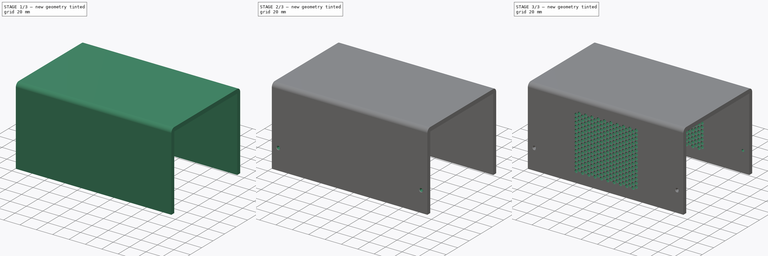
[diagram: build sequence overview — one tinted view per stage of 3, left to right]
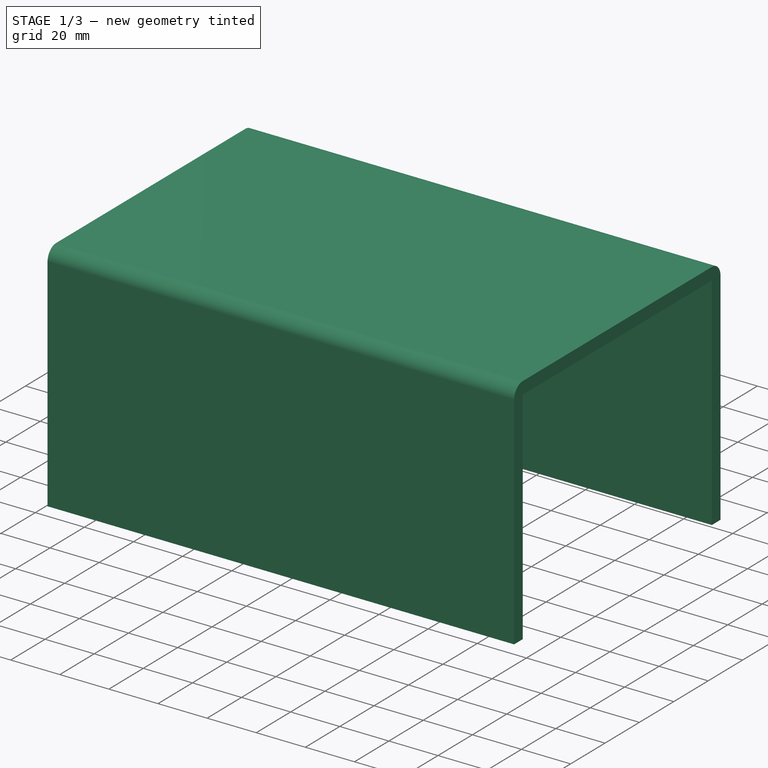
[diagram: stage 1 of 3 — iso view after this stage's code; geometry added in this stage tinted green]
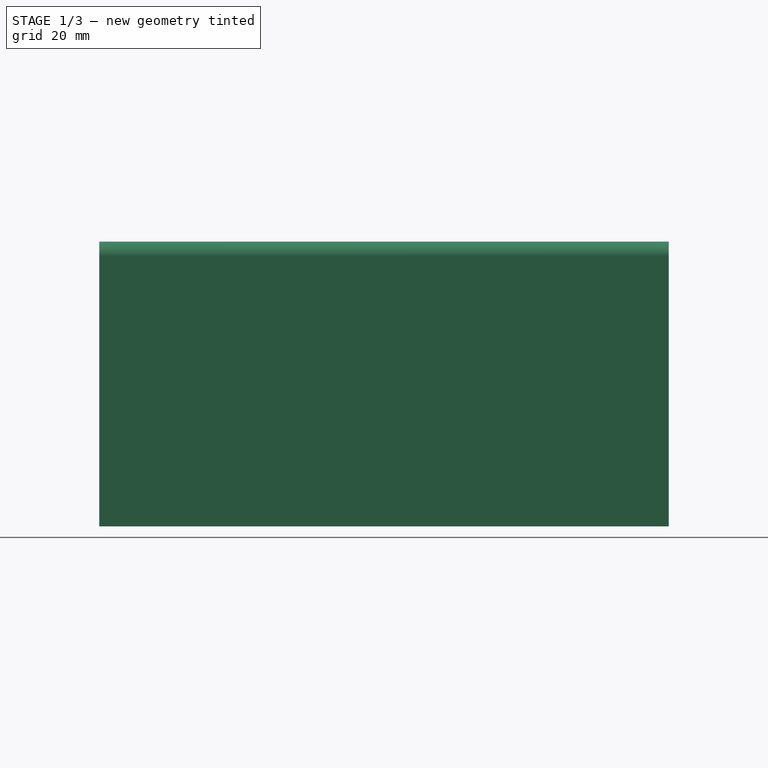
[diagram: stage 1 of 3 — front view after this stage's code; geometry added in this stage tinted green]
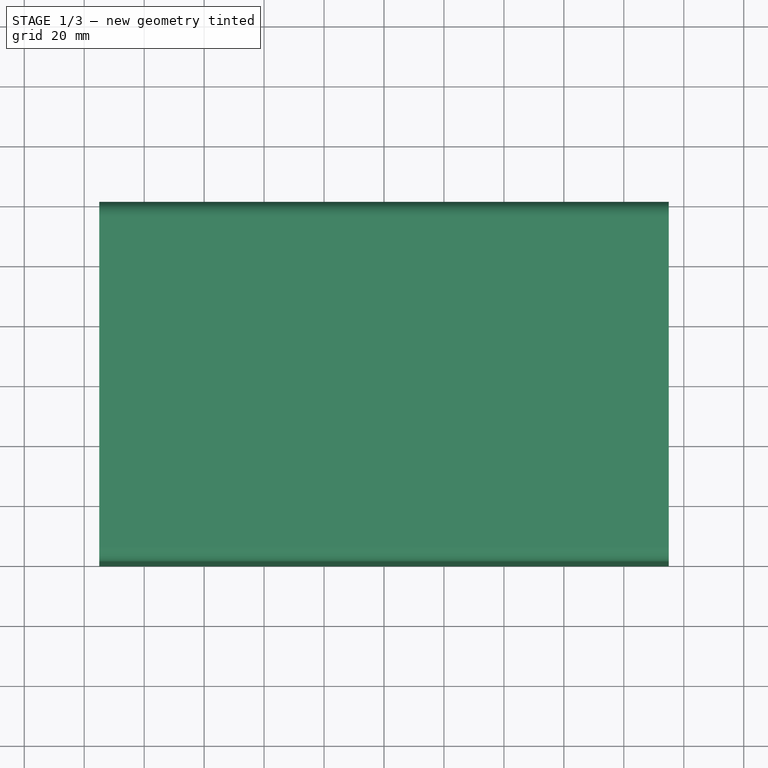
[diagram: stage 1 of 3 — top view after this stage's code; geometry added in this stage tinted green]
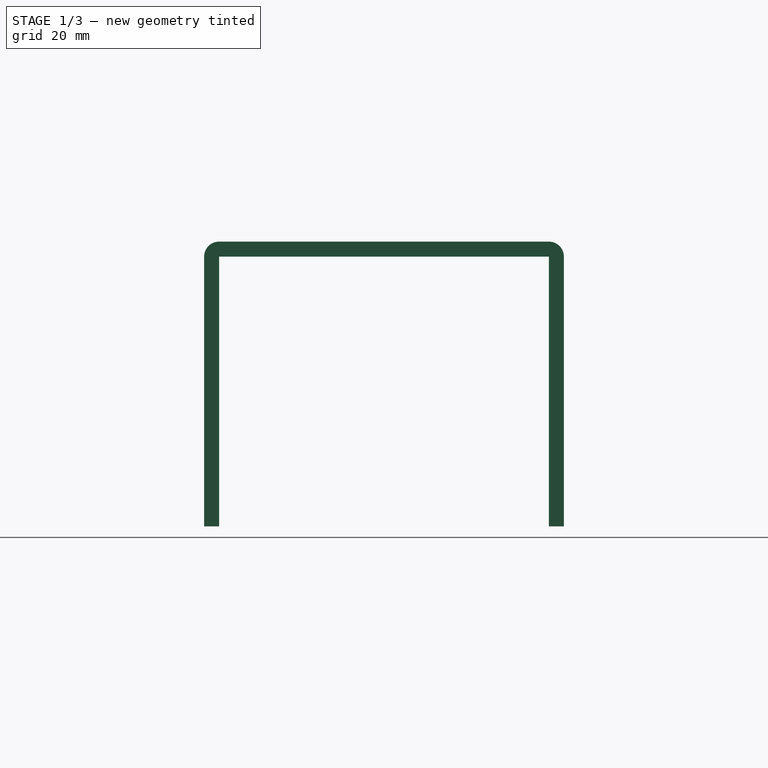
[diagram: stage 1 of 3 — right view after this stage's code; geometry added in this stage tinted green]
FCSTD DOCUMENT  (FreeCAD 0.19R24276 (Git))
Label: Cover
License: All rights reserved
LicenseURL: http://en.wikipedia.org/wiki/All_rights_reserved
objects: Sketcher::SketchObject×4, PartDesign::Hole×2, PartDesign::Pad×1, PartDesign::Thickness×1, PartDesign::Pocket×1, PartDesign::Body×1
note: 15 computed .brp shape members not serialized (recipe doc carries the construction recipe); baked Part::Feature solids carry a one-line shape summary decoded from their .brp

FEATURE [Sketcher::SketchObject] Sketch
  FullyConstrained = true
  MapMode = 5
  Support = -> [XY_Plane]
  sketch-geometry (4):
    g0: LineSegment StartX=-95 StartY=55 StartZ=0 EndX=95 EndY=55 EndZ=0
    g1: LineSegment StartX=95 StartY=55 StartZ=0 EndX=95 EndY=-55 EndZ=0
    g2: LineSegment StartX=95 StartY=-55 StartZ=0 EndX=-95 EndY=-55 EndZ=0
    g3: LineSegment StartX=-95 StartY=-55 StartZ=0 EndX=-95 EndY=55 EndZ=0
  constraints (10):
    c: Coincident(g0,g1)
    c: Coincident(g1,g2)
    c: Coincident(g2,g3)
    c: Coincident(g3,g0)
    c: Horizontal(g2)
    c: Vertical(g3)
    c: Symmetric(g0,g0,g-2)
    c: DistanceX(g0,g0) = 190
    c: DistanceY(g1,g1) = 110
    c: Symmetric(g0,g1,g-1)
FEATURE [PartDesign::Pad] Pad
  Direction = (1,1,1)
  Length = 90
  Length2 = 100
  Profile = -> Sketch
  Type = 0
FEATURE [PartDesign::Thickness] Thickness
  Base = -> Pad [Face2,Face4,Face5]
  BaseFeature = -> Pad
  Intersection = false
  Join = 0
  Mode = 0
  SupportTransform = false
  Value = 5
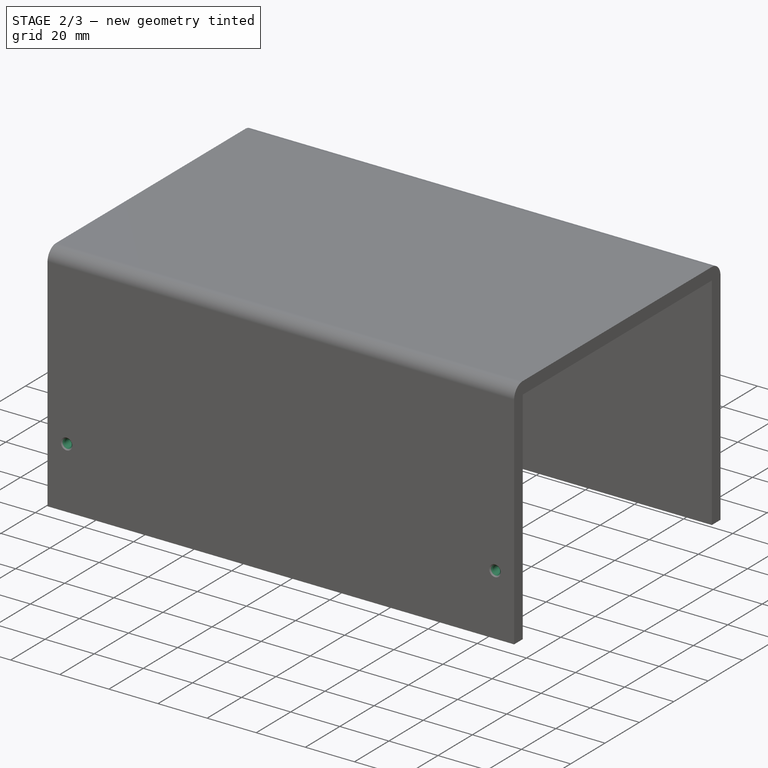
[diagram: stage 2 of 3 — iso view after this stage's code; geometry added in this stage tinted green]
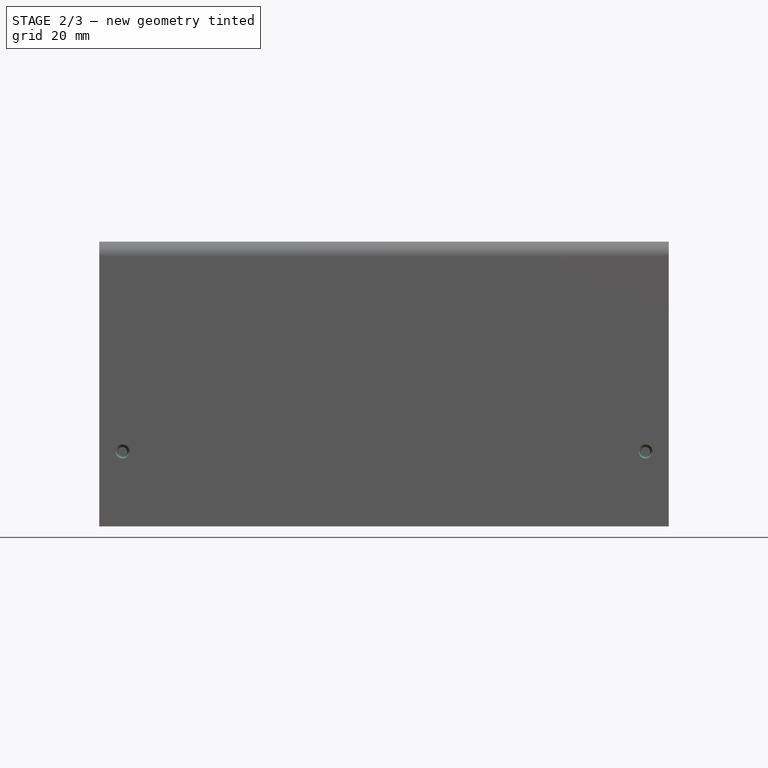
[diagram: stage 2 of 3 — front view after this stage's code; geometry added in this stage tinted green]
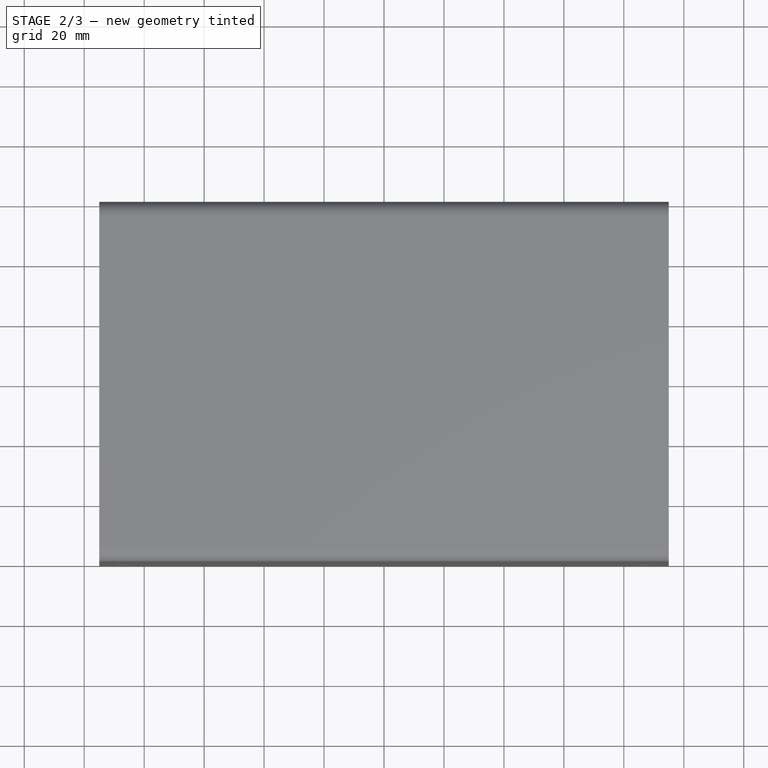
[diagram: stage 2 of 3 — top view after this stage's code; geometry added in this stage tinted green]
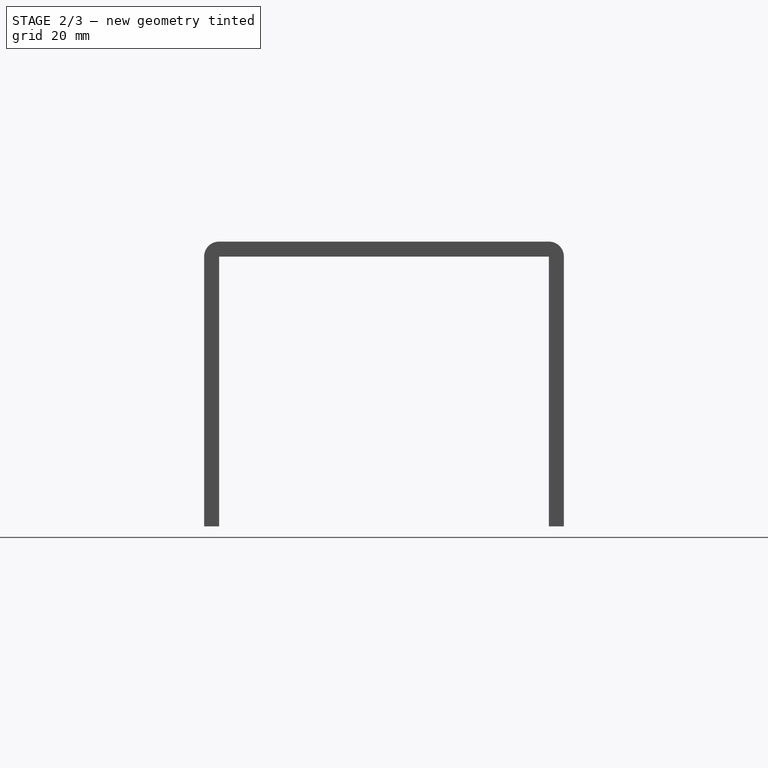
[diagram: stage 2 of 3 — right view after this stage's code; geometry added in this stage tinted green]
FEATURE [Sketcher::SketchObject] Sketch001
  FullyConstrained = true
  MapMode = 5
  Placement = pos=(0,-60,0) rot=(1,0,0;1.5708rad)
  Support = -> [Thickness]
  sketch-geometry (2):
    g0: Circle CenterX=87.225 CenterY=25 CenterZ=0 NormalX=0 NormalY=0 NormalZ=1 AngleXU=0 Radius=1.5
    g1: Circle CenterX=-87.225 CenterY=25 CenterZ=0 NormalX=0 NormalY=0 NormalZ=1 AngleXU=0 Radius=1.5
  constraints (5):
    c: DistanceY(g-1,g0) = 25
    c: Diameter(g0) = 3
    c: Diameter(g1) = 3
    c: Distance(g1,g0) = 174.45
    c: Symmetric(g0,g1,g-2)
FEATURE [PartDesign::Hole] Hole
  BaseFeature = -> Thickness
  Depth = 5
  DepthType = 0
  Diameter = 3
  DrillForDepth = false
  DrillPoint = 0
  DrillPointAngle = 118
  HoleCutCountersinkAngle = 90
  HoleCutCustomValues = false
  HoleCutDepth = 1.5
  HoleCutDiameter = 4.7
  HoleCutType = 2
  ModelActualThread = false
  Profile = -> Sketch001
  Tapered = false
  TaperedAngle = 90
  ThreadAngle = 0
  ThreadClass = 0
  ThreadCutOffInner = 0
  ThreadCutOffOuter = 0
  ThreadDirection = 0
  ThreadFit = 0
  ThreadPitch = 0
  ThreadSize = 0
  ThreadType = 0
  Threaded = false
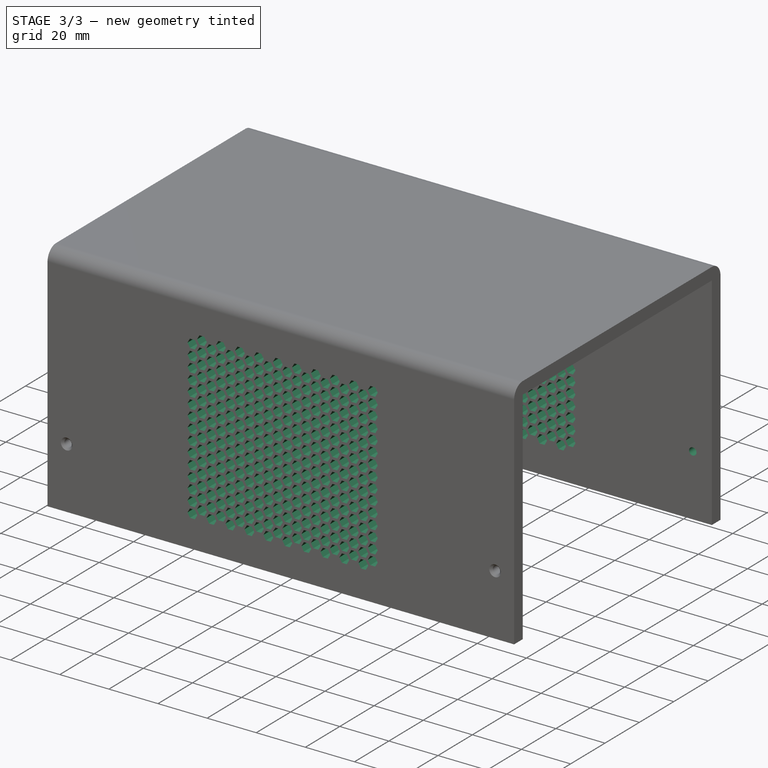
[diagram: stage 3 of 3 — iso view after this stage's code; geometry added in this stage tinted green]
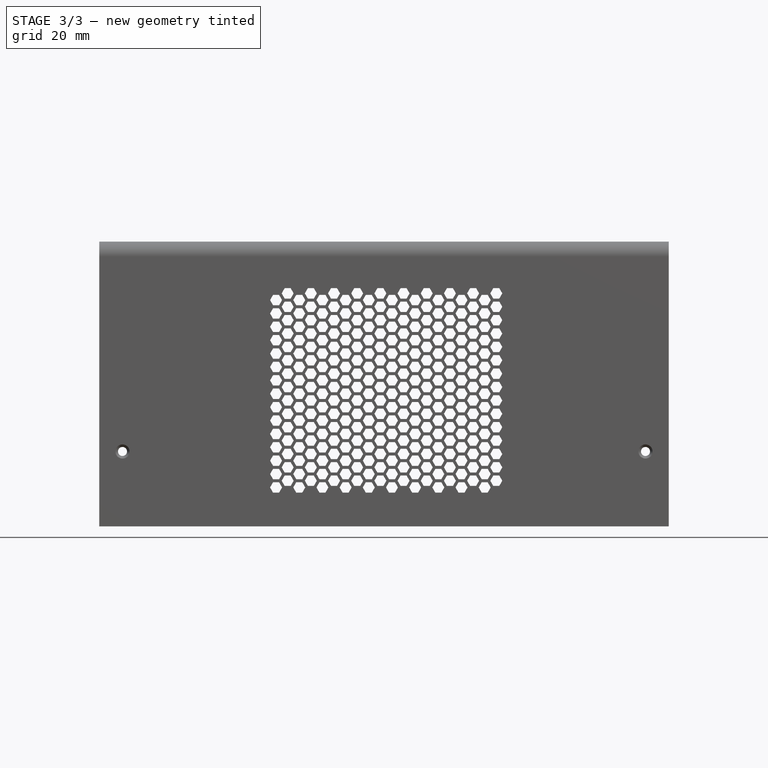
[diagram: stage 3 of 3 — front view after this stage's code; geometry added in this stage tinted green]
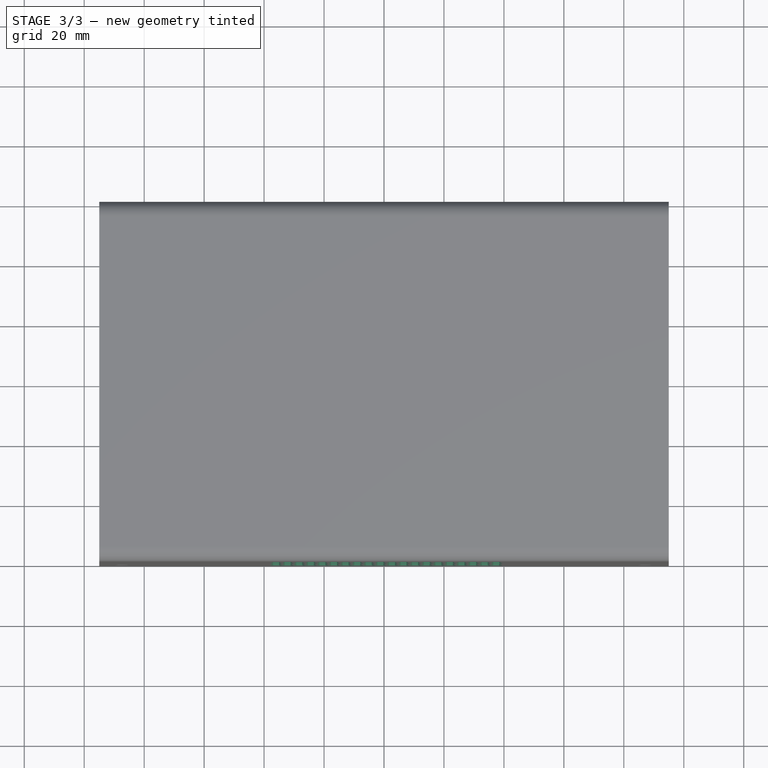
[diagram: stage 3 of 3 — top view after this stage's code; geometry added in this stage tinted green]
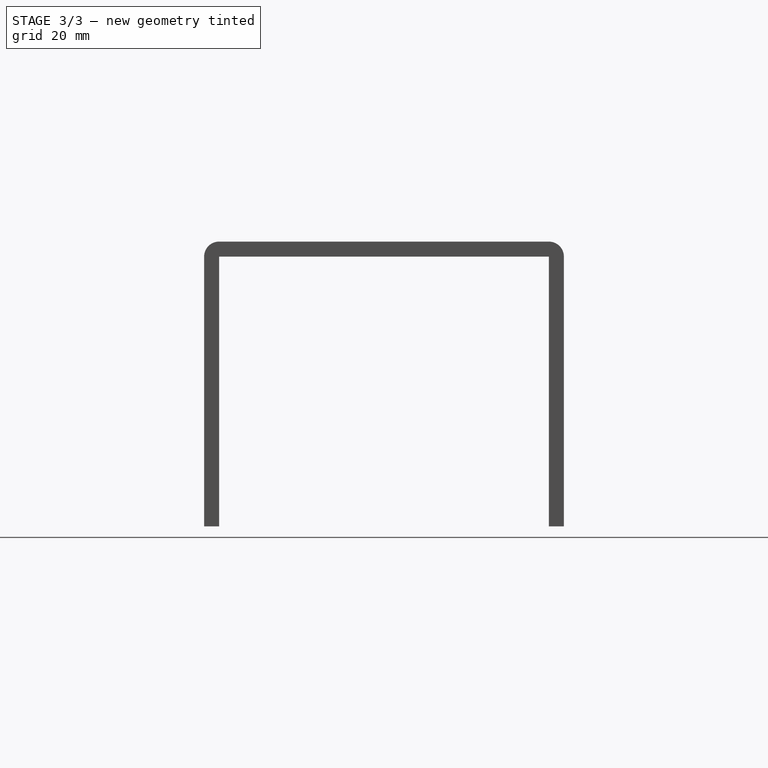
[diagram: stage 3 of 3 — right view after this stage's code; geometry added in this stage tinted green]
FEATURE [Sketcher::SketchObject] Sketch003
  FullyConstrained = true
  MapMode = 5
  Placement = pos=(0,60,0) rot=(0,0.707107,0.707107;3.14159rad)
  Support = -> [Hole]
  sketch-geometry (2):
    g0: Circle CenterX=-87.225 CenterY=25 CenterZ=0 NormalX=0 NormalY=0 NormalZ=1 AngleXU=0 Radius=1.5
    g1: Circle CenterX=87.225 CenterY=25 CenterZ=0 NormalX=0 NormalY=0 NormalZ=1 AngleXU=0 Radius=1.5
  constraints (5):
    c: Diameter(g0) = 3
    c: Diameter(g1) = 3
    c: DistanceX(g0,g1) = 174.45
    c: Distance(g0,g-1) = 25
    c: Symmetric(g0,g1,g-2)
FEATURE [PartDesign::Hole] Hole001
  BaseFeature = -> Hole
  Depth = 5
  DepthType = 0
  Diameter = 3
  DrillForDepth = false
  DrillPoint = 0
  DrillPointAngle = 118
  HoleCutCountersinkAngle = 90
  HoleCutCustomValues = false
  HoleCutDepth = 1.5
  HoleCutDiameter = 4.7
  HoleCutType = 2
  ModelActualThread = false
  Profile = -> Sketch003
  Tapered = false
  TaperedAngle = 90
  ThreadAngle = 0
  ThreadClass = 0
  ThreadCutOffInner = 0
  ThreadCutOffOuter = 0
  ThreadDirection = 0
  ThreadFit = 0
  ThreadPitch = 0
  ThreadSize = 0
  ThreadType = 0
  Threaded = false
FEATURE [Sketcher::SketchObject] Sketch002
  AttachmentOffset = pos=(-38,11,0) rot=(0,0,1;0rad)
  FullyConstrained = false
  MapMode = 5
  Placement = pos=(-38,-60,11) rot=(1,0,0;1.5708rad)
  Support = -> [Hole001]
  sketch-geometry (1800):
    g0: LineSegment StartX=3 StartY=0.267949 StartZ=0 EndX=4 EndY=2 EndZ=0
    g1: LineSegment StartX=4 StartY=2 StartZ=0 EndX=3 EndY=3.73205 EndZ=0
    g2: LineSegment StartX=3 StartY=3.73205 StartZ=0 EndX=1 EndY=3.73205 EndZ=0
    g3: LineSegment StartX=1 StartY=3.73205 StartZ=0 EndX=-2e-16 EndY=2 EndZ=0
    g4: LineSegment StartX=-2e-16 StartY=2 StartZ=0 EndX=1 EndY=0.267949 EndZ=0
    g5: LineSegment StartX=1 StartY=0.267949 StartZ=0 EndX=3 EndY=0.267949 EndZ=0
    g6: LineSegment StartX=3 StartY=4.73205 StartZ=0 EndX=4 EndY=6.4641 EndZ=0
    g7: LineSegment StartX=4 StartY=6.4641 StartZ=0 EndX=3 EndY=8.19615 EndZ=0
    g8: LineSegment StartX=3 StartY=8.19615 StartZ=0 EndX=1 EndY=8.19615 EndZ=0
    g9: LineSegment StartX=1 StartY=8.19615 StartZ=0 EndX=-2e-16 EndY=6.4641 EndZ=0
    g10: LineSegment StartX=-2e-16 StartY=6.4641 StartZ=0 EndX=1 EndY=4.73205 EndZ=0
    g11: LineSegment StartX=1 StartY=4.73205 StartZ=0 EndX=3 EndY=4.73205 EndZ=0
    g12: LineSegment StartX=3 StartY=9.19615 StartZ=0 EndX=4 EndY=10.9282 EndZ=0
    g13: LineSegment StartX=4 StartY=10.9282 StartZ=0 EndX=3 EndY=12.6603 EndZ=0
    g14: LineSegment StartX=3 StartY=12.6603 StartZ=0 EndX=1 EndY=12.6603 EndZ=0
    g15: LineSegment StartX=1 StartY=12.6603 StartZ=0 EndX=-7e-16 EndY=10.9282 EndZ=0
    g16: LineSegment StartX=-7e-16 StartY=10.9282 StartZ=0 EndX=1 EndY=9.19615 EndZ=0
    g17: LineSegment StartX=1 StartY=9.19615 StartZ=0 EndX=3 EndY=9.19615 EndZ=0
    g18: LineSegment StartX=3 StartY=13.6603 StartZ=0 EndX=4 EndY=15.3923 EndZ=0
    g19: LineSegment StartX=4 StartY=15.3923 StartZ=0 EndX=3 EndY=17.1244 EndZ=0
    g20: LineSegment StartX=3 StartY=17.1244 StartZ=0 EndX=1 EndY=17.1244 EndZ=0
    g21: LineSegment StartX=1 StartY=17.1244 StartZ=0 EndX=4e-16 EndY=15.3923 EndZ=0
    g22: LineSegment StartX=4e-16 StartY=15.3923 StartZ=0 EndX=1 EndY=13.6603 EndZ=0
    g23: LineSegment StartX=1 StartY=13.6603 StartZ=0 EndX=3 EndY=13.6603 EndZ=0
    g24: LineSegment StartX=3 StartY=18.1244 StartZ=0 EndX=4 EndY=19.8564 EndZ=0
    g25: LineSegment StartX=4 StartY=19.8564 StartZ=0 EndX=3 EndY=21.5885 EndZ=0
    g26: LineSegment StartX=3 StartY=21.5885 StartZ=0 EndX=1 EndY=21.5885 EndZ=0
    g27: LineSegment StartX=1 StartY=21.5885 StartZ=0 EndX=0 EndY=19.8564 EndZ=0
    g28: LineSegment StartX=0 StartY=19.8564 StartZ=0 EndX=1 EndY=18.1244 EndZ=0
    g29: LineSegment StartX=1 StartY=18.1244 StartZ=0 EndX=3 EndY=18.1244 EndZ=0
    g30: LineSegment StartX=3 StartY=22.5885 StartZ=0 EndX=4 EndY=24.3205 EndZ=0
    g31: LineSegment StartX=4 StartY=24.3205 StartZ=0 EndX=3 EndY=26.0526 EndZ=0
    g32: LineSegment StartX=3 StartY=26.0526 StartZ=0 EndX=1 EndY=26.0526 EndZ=0
    g33: LineSegment StartX=1 StartY=26.0526 StartZ=0 EndX=0 EndY=24.3205 EndZ=0
    g34: LineSegment StartX=0 StartY=24.3205 StartZ=0 EndX=1 EndY=22.5885 EndZ=0
    g35: LineSegment StartX=1 StartY=22.5885 StartZ=0 EndX=3 EndY=22.5885 EndZ=0
    g36: LineSegment StartX=3 StartY=27.0526 StartZ=0 EndX=4 EndY=28.7846 EndZ=0
    g37: LineSegment StartX=4 StartY=28.7846 StartZ=0 EndX=3 EndY=30.5167 EndZ=0
    g38: LineSegment StartX=3 StartY=30.5167 StartZ=0 EndX=1 EndY=30.5167 EndZ=0
    g39: LineSegment StartX=1 StartY=30.5167 StartZ=0 EndX=-1.8e-15 EndY=28.7846 EndZ=0
    g40: LineSegment StartX=-1.8e-15 StartY=28.7846 StartZ=0 EndX=1 EndY=27.0526 EndZ=0
    g41: LineSegment StartX=1 StartY=27.0526 StartZ=0 EndX=3 EndY=27.0526 EndZ=0
    g42: LineSegment StartX=3 StartY=31.5167 StartZ=0 EndX=4 EndY=33.2487 EndZ=0
    g43: LineSegment StartX=4 StartY=33.2487 StartZ=0 EndX=3 EndY=34.9808 EndZ=0
    g44: LineSegment StartX=3 StartY=34.9808 StartZ=0 EndX=1 EndY=34.9808 EndZ=0
    g45: LineSegment StartX=1 StartY=34.9808 StartZ=0 EndX=0 EndY=33.2487 EndZ=0
    g46: LineSegment StartX=0 StartY=33.2487 StartZ=0 EndX=1 EndY=31.5167 EndZ=0
    g47: LineSegment StartX=1 StartY=31.5167 StartZ=0 EndX=3 EndY=31.5167 EndZ=0
    g48: LineSegment StartX=3 StartY=35.9808 StartZ=0 EndX=4 EndY=37.7128 EndZ=0
    g49: LineSegment StartX=4 StartY=37.7128 StartZ=0 EndX=3 EndY=39.4449 EndZ=0
    g50: LineSegment StartX=3 StartY=39.4449 StartZ=0 EndX=1 EndY=39.4449 EndZ=0
    g51: LineSegment StartX=1 StartY=39.4449 StartZ=0 EndX=-1.8e-15 EndY=37.7128 EndZ=0
    g52: LineSegment StartX=-1.8e-15 StartY=37.7128 StartZ=0 EndX=1 EndY=35.9808 EndZ=0
    g53: LineSegment StartX=1 StartY=35.9808 StartZ=0 EndX=3 EndY=35.9808 EndZ=0
    g54: LineSegment StartX=3 StartY=40.4449 StartZ=0 EndX=4 EndY=42.1769 EndZ=0
    g55: LineSegment StartX=4 StartY=42.1769 StartZ=0 EndX=3 EndY=43.909 EndZ=0
    g56: LineSegment StartX=3 StartY=43.909 StartZ=0 EndX=1 EndY=43.909 EndZ=0
    g57: LineSegment StartX=1 StartY=43.909 StartZ=0 EndX=-1.8e-15 EndY=42.1769 EndZ=0
    g58: LineSegment StartX=-1.8e-15 StartY=42.1769 StartZ=0 EndX=1 EndY=40.4449 EndZ=0
    g59: LineSegment StartX=1 StartY=40.4449 StartZ=0 EndX=3 EndY=40.4449 EndZ=0
    g60: LineSegment StartX=3 StartY=44.909 StartZ=0 EndX=4 EndY=46.641 EndZ=0
    g61: LineSegment StartX=4 StartY=46.641 StartZ=0 EndX=3 EndY=48.3731 EndZ=0
    g62: LineSegment StartX=3 StartY=48.3731 StartZ=0 EndX=1 EndY=48.3731 EndZ=0
    g63: LineSegment StartX=1 StartY=48.3731 StartZ=0 EndX=-1.8e-15 EndY=46.641 EndZ=0
    g64: LineSegment StartX=-1.8e-15 StartY=46.641 StartZ=0 EndX=1 EndY=44.909 EndZ=0
    g65: LineSegment StartX=1 StartY=44.909 StartZ=0 EndX=3 EndY=44.909 EndZ=0
    g66: LineSegment StartX=3 StartY=49.3731 StartZ=0 EndX=4 EndY=51.1051 EndZ=0
    g67: LineSegment StartX=4 StartY=51.1051 StartZ=0 EndX=3 EndY=52.8372 EndZ=0
    g68: LineSegment StartX=3 StartY=52.8372 StartZ=0 EndX=1 EndY=52.8372 EndZ=0
    g69: LineSegment StartX=1 StartY=52.8372 StartZ=0 EndX=0 EndY=51.1051 EndZ=0
    g70: LineSegment StartX=0 StartY=51.1051 StartZ=0 EndX=1 EndY=49.3731 EndZ=0
    g71: LineSegment StartX=1 StartY=49.3731 StartZ=0 EndX=3 EndY=49.3731 EndZ=0
    g72: LineSegment StartX=3 StartY=53.8372 StartZ=0 EndX=4 EndY=55.5692 EndZ=0
    g73: LineSegment StartX=4 StartY=55.5692 StartZ=0 EndX=3 EndY=57.3013 EndZ=0
    g74: LineSegment StartX=3 StartY=57.3013 StartZ=0 EndX=1 EndY=57.3013 EndZ=0
    g75: LineSegment StartX=1 StartY=57.3013 StartZ=0 EndX=-1.8e-15 EndY=55.5692 EndZ=0
    g76: LineSegment StartX=-1.8e-15 StartY=55.5692 StartZ=0 EndX=1 EndY=53.8372 EndZ=0
    g77: LineSegment StartX=1 StartY=53.8372 StartZ=0 EndX=3 EndY=53.8372 EndZ=0
    g78: LineSegment StartX=3 StartY=58.3013 StartZ=0 EndX=4 EndY=60.0333 EndZ=0
    g79: LineSegment StartX=4 StartY=60.0333 StartZ=0 EndX=3 EndY=61.7654 EndZ=0
    g80: LineSegment StartX=3 StartY=61.7654 StartZ=0 EndX=1 EndY=61.7654 EndZ=0
    g81: LineSegment StartX=1 StartY=61.7654 StartZ=0 EndX=0 EndY=60.0333 EndZ=0
    g82: LineSegment StartX=0 StartY=60.0333 StartZ=0 EndX=1 EndY=58.3013 EndZ=0
    g83: LineSegment StartX=1 StartY=58.3013 StartZ=0 EndX=3 EndY=58.3013 EndZ=0
    g84: LineSegment StartX=3 StartY=62.7654 StartZ=0 EndX=4 EndY=64.4974 EndZ=0
    g85: LineSegment StartX=4 StartY=64.4974 StartZ=0 EndX=3 EndY=66.2295 EndZ=0
    g86: LineSegment StartX=3 StartY=66.2295 StartZ=0 EndX=1 EndY=66.2295 EndZ=0
    g87: LineSegment StartX=1 StartY=66.2295 StartZ=0 EndX=3.6e-15 EndY=64.4974 EndZ=0
    g88: LineSegment StartX=3.6e-15 StartY=64.4974 StartZ=0 EndX=1 EndY=62.7654 EndZ=0
    g89: LineSegment StartX=1 StartY=62.7654 StartZ=0 EndX=3 EndY=62.7654 EndZ=0
    g90: LineSegment StartX=10.7321 StartY=0.267949 StartZ=0 EndX=11.7321 EndY=2 EndZ=0
    g91: LineSegment StartX=11.7321 StartY=2 StartZ=0 EndX=10.7321 EndY=3.73205 EndZ=0
    g92: LineSegment StartX=10.7321 StartY=3.73205 StartZ=0 EndX=8.73205 EndY=3.73205 EndZ=0
    g93: LineSegment StartX=8.73205 StartY=3.73205 StartZ=0 EndX=7.73205 EndY=2 EndZ=0
    g94: LineSegment StartX=7.73205 StartY=2 StartZ=0 EndX=8.73205 EndY=0.267949 EndZ=0
    g95: LineSegment StartX=8.73205 StartY=0.267949 StartZ=0 EndX=10.7321 EndY=0.267949 EndZ=0
    g96: LineSegment StartX=10.7321 StartY=4.73205 StartZ=0 EndX=11.7321 EndY=6.4641 EndZ=0
    g97: LineSegment StartX=11.7321 StartY=6.4641 StartZ=0 EndX=10.7321 EndY=8.19615 EndZ=0
    g98: LineSegment StartX=10.7321 StartY=8.19615 StartZ=0 EndX=8.73205 EndY=8.19615 EndZ=0
    g99: LineSegment StartX=8.73205 StartY=8.19615 StartZ=0 EndX=7.73205 EndY=6.4641 EndZ=0
    g100: LineSegment StartX=7.73205 StartY=6.4641 StartZ=0 EndX=8.73205 EndY=4.73205 EndZ=0
    g101: LineSegment StartX=8.73205 StartY=4.73205 StartZ=0 EndX=10.7321 EndY=4.73205 EndZ=0
    g102: LineSegment StartX=10.7321 StartY=9.19615 StartZ=0 EndX=11.7321 EndY=10.9282 EndZ=0
    g103: LineSegment StartX=11.7321 StartY=10.9282 StartZ=0 EndX=10.7321 EndY=12.6603 EndZ=0
    g104: LineSegment StartX=10.7321 StartY=12.6603 StartZ=0 EndX=8.73205 EndY=12.6603 EndZ=0
    g105: LineSegment StartX=8.73205 StartY=12.6603 StartZ=0 EndX=7.73205 EndY=10.9282 EndZ=0
    g106: LineSegment StartX=7.73205 StartY=10.9282 StartZ=0 EndX=8.73205 EndY=9.19615 EndZ=0
    g107: LineSegment StartX=8.73205 StartY=9.19615 StartZ=0 EndX=10.7321 EndY=9.19615 EndZ=0
    g108: LineSegment StartX=10.7321 StartY=13.6603 StartZ=0 EndX=11.7321 EndY=15.3923 EndZ=0
    g109: LineSegment StartX=11.7321 StartY=15.3923 StartZ=0 EndX=10.7321 EndY=17.1244 EndZ=0
    g110: LineSegment StartX=10.7321 StartY=17.1244 StartZ=0 EndX=8.73205 EndY=17.1244 EndZ=0
    g111: LineSegment StartX=8.73205 StartY=17.1244 StartZ=0 EndX=7.73205 EndY=15.3923 EndZ=0
    g112: LineSegment StartX=7.73205 StartY=15.3923 StartZ=0 EndX=8.73205 EndY=13.6603 EndZ=0
    g113: LineSegment StartX=8.73205 StartY=13.6603 StartZ=0 EndX=10.7321 EndY=13.6603 EndZ=0
    g114: LineSegment StartX=10.7321 StartY=18.1244 StartZ=0 EndX=11.7321 EndY=19.8564 EndZ=0
    g115: LineSegment StartX=11.7321 StartY=19.8564 StartZ=0 EndX=10.7321 EndY=21.5885 EndZ=0
    g116: LineSegment StartX=10.7321 StartY=21.5885 StartZ=0 EndX=8.73205 EndY=21.5885 EndZ=0
    g117: LineSegment StartX=8.73205 StartY=21.5885 StartZ=0 EndX=7.73205 EndY=19.8564 EndZ=0
    g118: LineSegment StartX=7.73205 StartY=19.8564 StartZ=0 EndX=8.73205 EndY=18.1244 EndZ=0
    g119: LineSegment StartX=8.73205 StartY=18.1244 StartZ=0 EndX=10.7321 EndY=18.1244 EndZ=0
    g120: LineSegment StartX=10.7321 StartY=22.5885 StartZ=0 EndX=11.7321 EndY=24.3205 EndZ=0
    g121: LineSegment StartX=11.7321 StartY=24.3205 StartZ=0 EndX=10.7321 EndY=26.0526 EndZ=0
    g122: LineSegment StartX=10.7321 StartY=26.0526 StartZ=0 EndX=8.73205 EndY=26.0526 EndZ=0
    g123: LineSegment StartX=8.73205 StartY=26.0526 StartZ=0 EndX=7.73205 EndY=24.3205 EndZ=0
    g124: LineSegment StartX=7.73205 StartY=24.3205 StartZ=0 EndX=8.73205 EndY=22.5885 EndZ=0
    g125: LineSegment StartX=8.73205 StartY=22.5885 StartZ=0 EndX=10.7321 EndY=22.5885 EndZ=0
    g126: LineSegment StartX=10.7321 StartY=27.0526 StartZ=0 EndX=11.7321 EndY=28.7846 EndZ=0
    g127: LineSegment StartX=11.7321 StartY=28.7846 StartZ=0 EndX=10.7321 EndY=30.5167 EndZ=0
    g128: LineSegment StartX=10.7321 StartY=30.5167 StartZ=0 EndX=8.73205 EndY=30.5167 EndZ=0
    g129: LineSegment StartX=8.73205 StartY=30.5167 StartZ=0 EndX=7.73205 EndY=28.7846 EndZ=0
    g130: LineSegment StartX=7.73205 StartY=28.7846 StartZ=0 EndX=8.73205 EndY=27.0526 EndZ=0
    g131: LineSegment StartX=8.73205 StartY=27.0526 StartZ=0 EndX=10.7321 EndY=27.0526 EndZ=0
    g132: LineSegment StartX=10.7321 StartY=31.5167 StartZ=0 EndX=11.7321 EndY=33.2487 EndZ=0
    g133: LineSegment StartX=11.7321 StartY=33.2487 StartZ=0 EndX=10.7321 EndY=34.9808 EndZ=0
    g134: LineSegment StartX=10.7321 StartY=34.9808 StartZ=0 EndX=8.73205 EndY=34.9808 EndZ=0
    g135: LineSegment StartX=8.73205 StartY=34.9808 StartZ=0 EndX=7.73205 EndY=33.2487 EndZ=0
    g136: LineSegment StartX=7.73205 StartY=33.2487 StartZ=0 EndX=8.73205 EndY=31.5167 EndZ=0
    g137: LineSegment StartX=8.73205 StartY=31.5167 StartZ=0 EndX=10.7321 EndY=31.5167 EndZ=0
    g138: LineSegment StartX=10.7321 StartY=35.9808 StartZ=0 EndX=11.7321 EndY=37.7128 EndZ=0
    g139: LineSegment StartX=11.7321 StartY=37.7128 StartZ=0 EndX=10.7321 EndY=39.4449 EndZ=0
    g140: LineSegment StartX=10.7321 StartY=39.4449 StartZ=0 EndX=8.73205 EndY=39.4449 EndZ=0
    g141: LineSegment StartX=8.73205 StartY=39.4449 StartZ=0 EndX=7.73205 EndY=37.7128 EndZ=0
    g142: LineSegment StartX=7.73205 StartY=37.7128 StartZ=0 EndX=8.73205 EndY=35.9808 EndZ=0
    g143: LineSegment StartX=8.73205 StartY=35.9808 StartZ=0 EndX=10.7321 EndY=35.9808 EndZ=0
    g144: LineSegment StartX=10.7321 StartY=40.4449 StartZ=0 EndX=11.7321 EndY=42.1769 EndZ=0
    g145: LineSegment StartX=11.7321 StartY=42.1769 StartZ=0 EndX=10.7321 EndY=43.909 EndZ=0
    g146: LineSegment StartX=10.7321 StartY=43.909 StartZ=0 EndX=8.73205 EndY=43.909 EndZ=0
    g147: LineSegment StartX=8.73205 StartY=43.909 StartZ=0 EndX=7.73205 EndY=42.1769 EndZ=0
    g148: LineSegment StartX=7.73205 StartY=42.1769 StartZ=0 EndX=8.73205 EndY=40.4449 EndZ=0
    g149: LineSegment StartX=8.73205 StartY=40.4449 StartZ=0 EndX=10.7321 EndY=40.4449 EndZ=0
    g150: LineSegment StartX=10.7321 StartY=44.909 StartZ=0 EndX=11.7321 EndY=46.641 EndZ=0
    g151: LineSegment StartX=11.7321 StartY=46.641 StartZ=0 EndX=10.7321 EndY=48.3731 EndZ=0
    g152: LineSegment StartX=10.7321 StartY=48.3731 StartZ=0 EndX=8.73205 EndY=48.3731 EndZ=0
    g153: LineSegment StartX=8.73205 StartY=48.3731 StartZ=0 EndX=7.73205 EndY=46.641 EndZ=0
    g154: LineSegment StartX=7.73205 StartY=46.641 StartZ=0 EndX=8.73205 EndY=44.909 EndZ=0
    g155: LineSegment StartX=8.73205 StartY=44.909 StartZ=0 EndX=10.7321 EndY=44.909 EndZ=0
    g156: LineSegment StartX=10.7321 StartY=49.3731 StartZ=0 EndX=11.7321 EndY=51.1051 EndZ=0
    g157: LineSegment StartX=11.7321 StartY=51.1051 StartZ=0 EndX=10.7321 EndY=52.8372 EndZ=0
    g158: LineSegment StartX=10.7321 StartY=52.8372 StartZ=0 EndX=8.73205 EndY=52.8372 EndZ=0
    g159: LineSegment StartX=8.73205 StartY=52.8372 StartZ=0 EndX=7.73205 EndY=51.1051 EndZ=0
    g160: LineSegment StartX=7.73205 StartY=51.1051 StartZ=0 EndX=8.73205 EndY=49.3731 EndZ=0
    g161: LineSegment StartX=8.73205 StartY=49.3731 StartZ=0 EndX=10.7321 EndY=49.3731 EndZ=0
    g162: LineSegment StartX=10.7321 StartY=53.8372 StartZ=0 EndX=11.7321 EndY=55.5692 EndZ=0
    g163: LineSegment StartX=11.7321 StartY=55.5692 StartZ=0 EndX=10.7321 EndY=57.3013 EndZ=0
    g164: LineSegment StartX=10.7321 StartY=57.3013 StartZ=0 EndX=8.73205 EndY=57.3013 EndZ=0
    g165: LineSegment StartX=8.73205 StartY=57.3013 StartZ=0 EndX=7.73205 EndY=55.5692 EndZ=0
    g166: LineSegment StartX=7.73205 StartY=55.5692 StartZ=0 EndX=8.73205 EndY=53.8372 EndZ=0
    g167: LineSegment StartX=8.73205 StartY=53.8372 StartZ=0 EndX=10.7321 EndY=53.8372 EndZ=0
    g168: LineSegment StartX=10.7321 StartY=58.3013 StartZ=0 EndX=11.7321 EndY=60.0333 EndZ=0
    g169: LineSegment StartX=11.7321 StartY=60.0333 StartZ=0 EndX=10.7321 EndY=61.7654 EndZ=0
    g170: LineSegment StartX=10.7321 StartY=61.7654 StartZ=0 EndX=8.73205 EndY=61.7654 EndZ=0
    g171: LineSegment StartX=8.73205 StartY=61.7654 StartZ=0 EndX=7.73205 EndY=60.0333 EndZ=0
    g172: LineSegment StartX=7.73205 StartY=60.0333 StartZ=0 EndX=8.73205 EndY=58.3013 EndZ=0
    g173: LineSegment StartX=8.73205 StartY=58.3013 StartZ=0 EndX=10.7321 EndY=58.3013 EndZ=0
    g174: LineSegment StartX=10.7321 StartY=62.7654 StartZ=0 EndX=11.7321 EndY=64.4974 EndZ=0
    g175: LineSegment StartX=11.7321 StartY=64.4974 StartZ=0 EndX=10.7321 EndY=66.2295 EndZ=0
    g176: LineSegment StartX=10.7321 StartY=66.2295 StartZ=0 EndX=8.73205 EndY=66.2295 EndZ=0
    g177: LineSegment StartX=8.73205 StartY=66.2295 StartZ=0 EndX=7.73205 EndY=64.4974 EndZ=0
    g178: LineSegment StartX=7.73205 StartY=64.4974 StartZ=0 EndX=8.73205 EndY=62.7654 EndZ=0
    g179: LineSegment StartX=8.73205 StartY=62.7654 StartZ=0 EndX=10.7321 EndY=62.7654 EndZ=0
    g180: LineSegment StartX=18.4641 StartY=0.267949 StartZ=0 EndX=19.4641 EndY=2 EndZ=0
    g181: LineSegment StartX=19.4641 StartY=2 StartZ=0 EndX=18.4641 EndY=3.73205 EndZ=0
    g182: LineSegment StartX=18.4641 StartY=3.73205 StartZ=0 EndX=16.4641 EndY=3.73205 EndZ=0
    g183: LineSegment StartX=16.4641 StartY=3.73205 StartZ=0 EndX=15.4641 EndY=2 EndZ=0
    g184: LineSegment StartX=15.4641 StartY=2 StartZ=0 EndX=16.4641 EndY=0.267949 EndZ=0
    g185: LineSegment StartX=16.4641 StartY=0.267949 StartZ=0 EndX=18.4641 EndY=0.267949 EndZ=0
    g186: LineSegment StartX=18.4641 StartY=4.73205 StartZ=0 EndX=19.4641 EndY=6.4641 EndZ=0
    g187: LineSegment StartX=19.4641 StartY=6.4641 StartZ=0 EndX=18.4641 EndY=8.19615 EndZ=0
    g188: LineSegment StartX=18.4641 StartY=8.19615 StartZ=0 EndX=16.4641 EndY=8.19615 EndZ=0
    g189: LineSegment StartX=16.4641 StartY=8.19615 StartZ=0 EndX=15.4641 EndY=6.4641 EndZ=0
    g190: LineSegment StartX=15.4641 StartY=6.4641 StartZ=0 EndX=16.4641 EndY=4.73205 EndZ=0
    g191: LineSegment StartX=16.4641 StartY=4.73205 StartZ=0 EndX=18.4641 EndY=4.73205 EndZ=0
    g192: LineSegment StartX=18.4641 StartY=9.19615 StartZ=0 EndX=19.4641 EndY=10.9282 EndZ=0
    g193: LineSegment StartX=19.4641 StartY=10.9282 StartZ=0 EndX=18.4641 EndY=12.6603 EndZ=0
    g194: LineSegment StartX=18.4641 StartY=12.6603 StartZ=0 EndX=16.4641 EndY=12.6603 EndZ=0
    g195: LineSegment StartX=16.4641 StartY=12.6603 StartZ=0 EndX=15.4641 EndY=10.9282 EndZ=0
    g196: LineSegment StartX=15.4641 StartY=10.9282 StartZ=0 EndX=16.4641 EndY=9.19615 EndZ=0
    g197: LineSegment StartX=16.4641 StartY=9.19615 StartZ=0 EndX=18.4641 EndY=9.19615 EndZ=0
    g198: LineSegment StartX=18.4641 StartY=13.6603 StartZ=0 EndX=19.4641 EndY=15.3923 EndZ=0
    g199: LineSegment StartX=19.4641 StartY=15.3923 StartZ=0 EndX=18.4641 EndY=17.1244 EndZ=0
    g200: LineSegment StartX=18.4641 StartY=17.1244 StartZ=0 EndX=16.4641 EndY=17.1244 EndZ=0
    g201: LineSegment StartX=16.4641 StartY=17.1244 StartZ=0 EndX=15.4641 EndY=15.3923 EndZ=0
    g202: LineSegment StartX=15.4641 StartY=15.3923 StartZ=0 EndX=16.4641 EndY=13.6603 EndZ=0
    g203: LineSegment StartX=16.4641 StartY=13.6603 StartZ=0 EndX=18.4641 EndY=13.6603 EndZ=0
    g204: LineSegment StartX=18.4641 StartY=18.1244 StartZ=0 EndX=19.4641 EndY=19.8564 EndZ=0
    g205: LineSegment StartX=19.4641 StartY=19.8564 StartZ=0 EndX=18.4641 EndY=21.5885 EndZ=0
    g206: LineSegment StartX=18.4641 StartY=21.5885 StartZ=0 EndX=16.4641 EndY=21.5885 EndZ=0
    g207: LineSegment StartX=16.4641 StartY=21.5885 StartZ=0 EndX=15.4641 EndY=19.8564 EndZ=0
    g208: LineSegment StartX=15.4641 StartY=19.8564 StartZ=0 EndX=16.4641 EndY=18.1244 EndZ=0
    g209: LineSegment StartX=16.4641 StartY=18.1244 StartZ=0 EndX=18.4641 EndY=18.1244 EndZ=0
    g210: LineSegment StartX=18.4641 StartY=22.5885 StartZ=0 EndX=19.4641 EndY=24.3205 EndZ=0
    g211: LineSegment StartX=19.4641 StartY=24.3205 StartZ=0 EndX=18.4641 EndY=26.0526 EndZ=0
    g212: LineSegment StartX=18.4641 StartY=26.0526 StartZ=0 EndX=16.4641 EndY=26.0526 EndZ=0
    g213: LineSegment StartX=16.4641 StartY=26.0526 StartZ=0 EndX=15.4641 EndY=24.3205 EndZ=0
    g214: LineSegment StartX=15.4641 StartY=24.3205 StartZ=0 EndX=16.4641 EndY=22.5885 EndZ=0
    g215: LineSegment StartX=16.4641 StartY=22.5885 StartZ=0 EndX=18.4641 EndY=22.5885 EndZ=0
    g216: LineSegment StartX=18.4641 StartY=27.0526 StartZ=0 EndX=19.4641 EndY=28.7846 EndZ=0
    g217: LineSegment StartX=19.4641 StartY=28.7846 StartZ=0 EndX=18.4641 EndY=30.5167 EndZ=0
    g218: LineSegment StartX=18.4641 StartY=30.5167 StartZ=0 EndX=16.4641 EndY=30.5167 EndZ=0
    g219: LineSegment StartX=16.4641 StartY=30.5167 StartZ=0 EndX=15.4641 EndY=28.7846 EndZ=0
    g220: LineSegment StartX=15.4641 StartY=28.7846 StartZ=0 EndX=16.4641 EndY=27.0526 EndZ=0
    g221: LineSegment StartX=16.4641 StartY=27.0526 StartZ=0 EndX=18.4641 EndY=27.0526 EndZ=0
    g222: LineSegment StartX=18.4641 StartY=31.5167 StartZ=0 EndX=19.4641 EndY=33.2487 EndZ=0
    g223: LineSegment StartX=19.4641 StartY=33.2487 StartZ=0 EndX=18.4641 EndY=34.9808 EndZ=0
    g224: LineSegment StartX=18.4641 StartY=34.9808 StartZ=0 EndX=16.4641 EndY=34.9808 EndZ=0
    g225: LineSegment StartX=16.4641 StartY=34.9808 StartZ=0 EndX=15.4641 EndY=33.2487 EndZ=0
    g226: LineSegment StartX=15.4641 StartY=33.2487 StartZ=0 EndX=16.4641 EndY=31.5167 EndZ=0
    g227: LineSegment StartX=16.4641 StartY=31.5167 StartZ=0 EndX=18.4641 EndY=31.5167 EndZ=0
    g228: LineSegment StartX=18.4641 StartY=35.9808 StartZ=0 EndX=19.4641 EndY=37.7128 EndZ=0
    g229: LineSegment StartX=19.4641 StartY=37.7128 StartZ=0 EndX=18.4641 EndY=39.4449 EndZ=0
    g230: LineSegment StartX=18.4641 StartY=39.4449 StartZ=0 EndX=16.4641 EndY=39.4449 EndZ=0
    g231: LineSegment StartX=16.4641 StartY=39.4449 StartZ=0 EndX=15.4641 EndY=37.7128 EndZ=0
    g232: LineSegment StartX=15.4641 StartY=37.7128 StartZ=0 EndX=16.4641 EndY=35.9808 EndZ=0
    g233: LineSegment StartX=16.4641 StartY=35.9808 StartZ=0 EndX=18.4641 EndY=35.9808 EndZ=0
    g234: LineSegment StartX=18.4641 StartY=40.4449 StartZ=0 EndX=19.4641 EndY=42.1769 EndZ=0
    g235: LineSegment StartX=19.4641 StartY=42.1769 StartZ=0 EndX=18.4641 EndY=43.909 EndZ=0
    g236: LineSegment StartX=18.4641 StartY=43.909 StartZ=0 EndX=16.4641 EndY=43.909 EndZ=0
    g237: LineSegment StartX=16.4641 StartY=43.909 StartZ=0 EndX=15.4641 EndY=42.1769 EndZ=0
    g238: LineSegment StartX=15.4641 StartY=42.1769 StartZ=0 EndX=16.4641 EndY=40.4449 EndZ=0
    g239: LineSegment StartX=16.4641 StartY=40.4449 StartZ=0 EndX=18.4641 EndY=40.4449 EndZ=0
    g240: LineSegment StartX=18.4641 StartY=44.909 StartZ=0 EndX=19.4641 EndY=46.641 EndZ=0
    g241: LineSegment StartX=19.4641 StartY=46.641 StartZ=0 EndX=18.4641 EndY=48.3731 EndZ=0
    g242: LineSegment StartX=18.4641 StartY=48.3731 StartZ=0 EndX=16.4641 EndY=48.3731 EndZ=0
    g243: LineSegment StartX=16.4641 StartY=48.3731 StartZ=0 EndX=15.4641 EndY=46.641 EndZ=0
    g244: LineSegment StartX=15.4641 StartY=46.641 StartZ=0 EndX=16.4641 EndY=44.909 EndZ=0
    g245: LineSegment StartX=16.4641 StartY=44.909 StartZ=0 EndX=18.4641 EndY=44.909 EndZ=0
    g246: LineSegment StartX=18.4641 StartY=49.3731 StartZ=0 EndX=19.4641 EndY=51.1051 EndZ=0
    g247: LineSegment StartX=19.4641 StartY=51.1051 StartZ=0 EndX=18.4641 EndY=52.8372 EndZ=0
    g248: LineSegment StartX=18.4641 StartY=52.8372 StartZ=0 EndX=16.4641 EndY=52.8372 EndZ=0
    g249: LineSegment StartX=16.4641 StartY=52.8372 StartZ=0 EndX=15.4641 EndY=51.1051 EndZ=0
    g250: LineSegment StartX=15.4641 StartY=51.1051 StartZ=0 EndX=16.4641 EndY=49.3731 EndZ=0
    g251: LineSegment StartX=16.4641 StartY=49.3731 StartZ=0 EndX=18.4641 EndY=49.3731 EndZ=0
    g252: LineSegment StartX=18.4641 StartY=53.8372 StartZ=0 EndX=19.4641 EndY=55.5692 EndZ=0
    g253: LineSegment StartX=19.4641 StartY=55.5692 StartZ=0 EndX=18.4641 EndY=57.3013 EndZ=0
    g254: LineSegment StartX=18.4641 StartY=57.3013 StartZ=0 EndX=16.4641 EndY=57.3013 EndZ=0
    g255: LineSegment StartX=16.4641 StartY=57.3013 StartZ=0 EndX=15.4641 EndY=55.5692 EndZ=0
    g256: LineSegment StartX=15.4641 StartY=55.5692 StartZ=0 EndX=16.4641 EndY=53.8372 EndZ=0
    g257: LineSegment StartX=16.4641 StartY=53.8372 StartZ=0 EndX=18.4641 EndY=53.8372 EndZ=0
    g258: LineSegment StartX=18.4641 StartY=58.3013 StartZ=0 EndX=19.4641 EndY=60.0333 EndZ=0
    g259: LineSegment StartX=19.4641 StartY=60.0333 StartZ=0 EndX=18.4641 EndY=61.7654 EndZ=0
    g260: LineSegment StartX=18.4641 StartY=61.7654 StartZ=0 EndX=16.4641 EndY=61.7654 EndZ=0
    g261: LineSegment StartX=16.4641 StartY=61.7654 StartZ=0 EndX=15.4641 EndY=60.0333 EndZ=0
    g262: LineSegment StartX=15.4641 StartY=60.0333 StartZ=0 EndX=16.4641 EndY=58.3013 EndZ=0
    g263: LineSegment StartX=16.4641 StartY=58.3013 StartZ=0 EndX=18.4641 EndY=58.3013 EndZ=0
    g264: LineSegment StartX=18.4641 StartY=62.7654 StartZ=0 EndX=19.4641 EndY=64.4974 EndZ=0
    g265: LineSegment StartX=19.4641 StartY=64.4974 StartZ=0 EndX=18.4641 EndY=66.2295 EndZ=0
    g266: LineSegment StartX=18.4641 StartY=66.2295 StartZ=0 EndX=16.4641 EndY=66.2295 EndZ=0
    g267: LineSegment StartX=16.4641 StartY=66.2295 StartZ=0 EndX=15.4641 EndY=64.4974 EndZ=0
    g268: LineSegment StartX=15.4641 StartY=64.4974 StartZ=0 EndX=16.4641 EndY=62.7654 EndZ=0
    g269: LineSegment StartX=16.4641 StartY=62.7654 StartZ=0 EndX=18.4641 EndY=62.7654 EndZ=0
    g270: LineSegment StartX=26.1962 StartY=0.267949 StartZ=0 EndX=27.1962 EndY=2 EndZ=0
    g271: LineSegment StartX=27.1962 StartY=2 StartZ=0 EndX=26.1962 EndY=3.73205 EndZ=0
    g272: LineSegment StartX=26.1962 StartY=3.73205 StartZ=0 EndX=24.1962 EndY=3.73205 EndZ=0
    g273: LineSegment StartX=24.1962 StartY=3.73205 StartZ=0 EndX=23.1962 EndY=2 EndZ=0
    g274: LineSegment StartX=23.1962 StartY=2 StartZ=0 EndX=24.1962 EndY=0.267949 EndZ=0
    g275: LineSegment StartX=24.1962 StartY=0.267949 StartZ=0 EndX=26.1962 EndY=0.267949 EndZ=0
    g276: LineSegment StartX=26.1962 StartY=4.73205 StartZ=0 EndX=27.1962 EndY=6.4641 EndZ=0
    g277: LineSegment StartX=27.1962 StartY=6.4641 StartZ=0 EndX=26.1962 EndY=8.19615 EndZ=0
    g278: LineSegment StartX=26.1962 StartY=8.19615 StartZ=0 EndX=24.1962 EndY=8.19615 EndZ=0
    g279: LineSegment StartX=24.1962 StartY=8.19615 StartZ=0 EndX=23.1962 EndY=6.4641 EndZ=0
    g280: LineSegment StartX=23.1962 StartY=6.4641 StartZ=0 EndX=24.1962 EndY=4.73205 EndZ=0
    g281: LineSegment StartX=24.1962 StartY=4.73205 StartZ=0 EndX=26.1962 EndY=4.73205 EndZ=0
    g282: LineSegment StartX=26.1962 StartY=9.19615 StartZ=0 EndX=27.1962 EndY=10.9282 EndZ=0
    g283: LineSegment StartX=27.1962 StartY=10.9282 StartZ=0 EndX=26.1962 EndY=12.6603 EndZ=0
    g284: LineSegment StartX=26.1962 StartY=12.6603 StartZ=0 EndX=24.1962 EndY=12.6603 EndZ=0
    g285: LineSegment StartX=24.1962 StartY=12.6603 StartZ=0 EndX=23.1962 EndY=10.9282 EndZ=0
    g286: LineSegment StartX=23.1962 StartY=10.9282 StartZ=0 EndX=24.1962 EndY=9.19615 EndZ=0
    g287: LineSegment StartX=24.1962 StartY=9.19615 StartZ=0 EndX=26.1962 EndY=9.19615 EndZ=0
    g288: LineSegment StartX=26.1962 StartY=13.6603 StartZ=0 EndX=27.1962 EndY=15.3923 EndZ=0
    g289: LineSegment StartX=27.1962 StartY=15.3923 StartZ=0 EndX=26.1962 EndY=17.1244 EndZ=0
    g290: LineSegment StartX=26.1962 StartY=17.1244 StartZ=0 EndX=24.1962 EndY=17.1244 EndZ=0
    g291: LineSegment StartX=24.1962 StartY=17.1244 StartZ=0 EndX=23.1962 EndY=15.3923 EndZ=0
    g292: LineSegment StartX=23.1962 StartY=15.3923 StartZ=0 EndX=24.1962 EndY=13.6603 EndZ=0
    g293: LineSegment StartX=24.1962 StartY=13.6603 StartZ=0 EndX=26.1962 EndY=13.6603 EndZ=0
    g294: LineSegment StartX=26.1962 StartY=18.1244 StartZ=0 EndX=27.1962 EndY=19.8564 EndZ=0
    g295: LineSegment StartX=27.1962 StartY=19.8564 StartZ=0 EndX=26.1962 EndY=21.5885 EndZ=0
    g296: LineSegment StartX=26.1962 StartY=21.5885 StartZ=0 EndX=24.1962 EndY=21.5885 EndZ=0
    g297: LineSegment StartX=24.1962 StartY=21.5885 StartZ=0 EndX=23.1962 EndY=19.8564 EndZ=0
    g298: LineSegment StartX=23.1962 StartY=19.8564 StartZ=0 EndX=24.1962 EndY=18.1244 EndZ=0
    g299: LineSegment StartX=24.1962 StartY=18.1244 StartZ=0 EndX=26.1962 EndY=18.1244 EndZ=0
    g300: LineSegment StartX=26.1962 StartY=22.5885 StartZ=0 EndX=27.1962 EndY=24.3205 EndZ=0
    g301: LineSegment StartX=27.1962 StartY=24.3205 StartZ=0 EndX=26.1962 EndY=26.0526 EndZ=0
    g302: LineSegment StartX=26.1962 StartY=26.0526 StartZ=0 EndX=24.1962 EndY=26.0526 EndZ=0
    g303: LineSegment StartX=24.1962 StartY=26.0526 StartZ=0 EndX=23.1962 EndY=24.3205 EndZ=0
    g304: LineSegment StartX=23.1962 StartY=24.3205 StartZ=0 EndX=24.1962 EndY=22.5885 EndZ=0
    g305: LineSegment StartX=24.1962 StartY=22.5885 StartZ=0 EndX=26.1962 EndY=22.5885 EndZ=0
    g306: LineSegment StartX=26.1962 StartY=27.0526 StartZ=0 EndX=27.1962 EndY=28.7846 EndZ=0
    g307: LineSegment StartX=27.1962 StartY=28.7846 StartZ=0 EndX=26.1962 EndY=30.5167 EndZ=0
    g308: LineSegment StartX=26.1962 StartY=30.5167 StartZ=0 EndX=24.1962 EndY=30.5167 EndZ=0
    g309: LineSegment StartX=24.1962 StartY=30.5167 StartZ=0 EndX=23.1962 EndY=28.7846 EndZ=0
    g310: LineSegment StartX=23.1962 StartY=28.7846 StartZ=0 EndX=24.1962 EndY=27.0526 EndZ=0
    g311: LineSegment StartX=24.1962 StartY=27.0526 StartZ=0 EndX=26.1962 EndY=27.0526 EndZ=0
    g312: LineSegment StartX=26.1962 StartY=31.5167 StartZ=0 EndX=27.1962 EndY=33.2487 EndZ=0
    g313: LineSegment StartX=27.1962 StartY=33.2487 StartZ=0 EndX=26.1962 EndY=34.9808 EndZ=0
    g314: LineSegment StartX=26.1962 StartY=34.9808 StartZ=0 EndX=24.1962 EndY=34.9808 EndZ=0
    g315: LineSegment StartX=24.1962 StartY=34.9808 StartZ=0 EndX=23.1962 EndY=33.2487 EndZ=0
    g316: LineSegment StartX=23.1962 StartY=33.2487 StartZ=0 EndX=24.1962 EndY=31.5167 EndZ=0
    g317: LineSegment StartX=24.1962 StartY=31.5167 StartZ=0 EndX=26.1962 EndY=31.5167 EndZ=0
    g318: LineSegment StartX=26.1962 StartY=35.9808 StartZ=0 EndX=27.1962 EndY=37.7128 EndZ=0
    g319: LineSegment StartX=27.1962 StartY=37.7128 StartZ=0 EndX=26.1962 EndY=39.4449 EndZ=0
    g320: LineSegment StartX=26.1962 StartY=39.4449 StartZ=0 EndX=24.1962 EndY=39.4449 EndZ=0
    g321: LineSegment StartX=24.1962 StartY=39.4449 StartZ=0 EndX=23.1962 EndY=37.7128 EndZ=0
    g322: LineSegment StartX=23.1962 StartY=37.7128 StartZ=0 EndX=24.1962 EndY=35.9808 EndZ=0
    g323: LineSegment StartX=24.1962 StartY=35.9808 StartZ=0 EndX=26.1962 EndY=35.9808 EndZ=0
    g324: LineSegment StartX=26.1962 StartY=40.4449 StartZ=0 EndX=27.1962 EndY=42.1769 EndZ=0
    g325: LineSegment StartX=27.1962 StartY=42.1769 StartZ=0 EndX=26.1962 EndY=43.909 EndZ=0
    g326: LineSegment StartX=26.1962 StartY=43.909 StartZ=0 EndX=24.1962 EndY=43.909 EndZ=0
    g327: LineSegment StartX=24.1962 StartY=43.909 StartZ=0 EndX=23.1962 EndY=42.1769 EndZ=0
    g328: LineSegment StartX=23.1962 StartY=42.1769 StartZ=0 EndX=24.1962 EndY=40.4449 EndZ=0
    g329: LineSegment StartX=24.1962 StartY=40.4449 StartZ=0 EndX=26.1962 EndY=40.4449 EndZ=0
    g330: LineSegment StartX=26.1962 StartY=44.909 StartZ=0 EndX=27.1962 EndY=46.641 EndZ=0
    g331: LineSegment StartX=27.1962 StartY=46.641 StartZ=0 EndX=26.1962 EndY=48.3731 EndZ=0
    g332: LineSegment StartX=26.1962 StartY=48.3731 StartZ=0 EndX=24.1962 EndY=48.3731 EndZ=0
    g333: LineSegment StartX=24.1962 StartY=48.3731 StartZ=0 EndX=23.1962 EndY=46.641 EndZ=0
    g334: LineSegment StartX=23.1962 StartY=46.641 StartZ=0 EndX=24.1962 EndY=44.909 EndZ=0
    g335: LineSegment StartX=24.1962 StartY=44.909 StartZ=0 EndX=26.1962 EndY=44.909 EndZ=0
    g336: LineSegment StartX=26.1962 StartY=49.3731 StartZ=0 EndX=27.1962 EndY=51.1051 EndZ=0
    g337: LineSegment StartX=27.1962 StartY=51.1051 StartZ=0 EndX=26.1962 EndY=52.8372 EndZ=0
    g338: LineSegment StartX=26.1962 StartY=52.8372 StartZ=0 EndX=24.1962 EndY=52.8372 EndZ=0
    g339: LineSegment StartX=24.1962 StartY=52.8372 StartZ=0 EndX=23.1962 EndY=51.1051 EndZ=0
    g340: LineSegment StartX=23.1962 StartY=51.1051 StartZ=0 EndX=24.1962 EndY=49.3731 EndZ=0
    g341: LineSegment StartX=24.1962 StartY=49.3731 StartZ=0 EndX=26.1962 EndY=49.3731 EndZ=0
    g342: LineSegment StartX=26.1962 StartY=53.8372 StartZ=0 EndX=27.1962 EndY=55.5692 EndZ=0
    g343: LineSegment StartX=27.1962 StartY=55.5692 StartZ=0 EndX=26.1962 EndY=57.3013 EndZ=0
    g344: LineSegment StartX=26.1962 StartY=57.3013 StartZ=0 EndX=24.1962 EndY=57.3013 EndZ=0
    g345: LineSegment StartX=24.1962 StartY=57.3013 StartZ=0 EndX=23.1962 EndY=55.5692 EndZ=0
    g346: LineSegment StartX=23.1962 StartY=55.5692 StartZ=0 EndX=24.1962 EndY=53.8372 EndZ=0
    g347: LineSegment StartX=24.1962 StartY=53.8372 StartZ=0 EndX=26.1962 EndY=53.8372 EndZ=0
    g348: LineSegment StartX=26.1962 StartY=58.3013 StartZ=0 EndX=27.1962 EndY=60.0333 EndZ=0
    g349: LineSegment StartX=27.1962 StartY=60.0333 StartZ=0 EndX=26.1962 EndY=61.7654 EndZ=0
    g350: LineSegment StartX=26.1962 StartY=61.7654 StartZ=0 EndX=24.1962 EndY=61.7654 EndZ=0
    g351: LineSegment StartX=24.1962 StartY=61.7654 StartZ=0 EndX=23.1962 EndY=60.0333 EndZ=0
    g352: LineSegment StartX=23.1962 StartY=60.0333 StartZ=0 EndX=24.1962 EndY=58.3013 EndZ=0
    g353: LineSegment StartX=24.1962 StartY=58.3013 StartZ=0 EndX=26.1962 EndY=58.3013 EndZ=0
    g354: LineSegment StartX=26.1962 StartY=62.7654 StartZ=0 EndX=27.1962 EndY=64.4974 EndZ=0
    g355: LineSegment StartX=27.1962 StartY=64.4974 StartZ=0 EndX=26.1962 EndY=66.2295 EndZ=0
    g356: LineSegment StartX=26.1962 StartY=66.2295 StartZ=0 EndX=24.1962 EndY=66.2295 EndZ=0
    g357: LineSegment StartX=24.1962 StartY=66.2295 StartZ=0 EndX=23.1962 EndY=64.4974 EndZ=0
    g358: LineSegment StartX=23.1962 StartY=64.4974 StartZ=0 EndX=24.1962 EndY=62.7654 EndZ=0
    g359: LineSegment StartX=24.1962 StartY=62.7654 StartZ=0 EndX=26.1962 EndY=62.7654 EndZ=0
    g360: LineSegment StartX=33.9282 StartY=0.267949 StartZ=0 EndX=34.9282 EndY=2 EndZ=0
    g361: LineSegment StartX=34.9282 StartY=2 StartZ=0 EndX=33.9282 EndY=3.73205 EndZ=0
    g362: LineSegment StartX=33.9282 StartY=3.73205 StartZ=0 EndX=31.9282 EndY=3.73205 EndZ=0
    g363: LineSegment StartX=31.9282 StartY=3.73205 StartZ=0 EndX=30.9282 EndY=2 EndZ=0
    g364: LineSegment StartX=30.9282 StartY=2 StartZ=0 EndX=31.9282 EndY=0.267949 EndZ=0
    g365: LineSegment StartX=31.9282 StartY=0.267949 StartZ=0 EndX=33.9282 EndY=0.267949 EndZ=0
    g366: LineSegment StartX=33.9282 StartY=4.73205 StartZ=0 EndX=34.9282 EndY=6.4641 EndZ=0
    g367: LineSegment StartX=34.9282 StartY=6.4641 StartZ=0 EndX=33.9282 EndY=8.19615 EndZ=0
    g368: LineSegment StartX=33.9282 StartY=8.19615 StartZ=0 EndX=31.9282 EndY=8.19615 EndZ=0
    g369: LineSegment StartX=31.9282 StartY=8.19615 StartZ=0 EndX=30.9282 EndY=6.4641 EndZ=0
    g370: LineSegment StartX=30.9282 StartY=6.4641 StartZ=0 EndX=31.9282 EndY=4.73205 EndZ=0
    g371: LineSegment StartX=31.9282 StartY=4.73205 StartZ=0 EndX=33.9282 EndY=4.73205 EndZ=0
    g372: LineSegment StartX=33.9282 StartY=9.19615 StartZ=0 EndX=34.9282 EndY=10.9282 EndZ=0
    g373: LineSegment StartX=34.9282 StartY=10.9282 StartZ=0 EndX=33.9282 EndY=12.6603 EndZ=0
    g374: LineSegment StartX=33.9282 StartY=12.6603 StartZ=0 EndX=31.9282 EndY=12.6603 EndZ=0
    g375: LineSegment StartX=31.9282 StartY=12.6603 StartZ=0 EndX=30.9282 EndY=10.9282 EndZ=0
    g376: LineSegment StartX=30.9282 StartY=10.9282 StartZ=0 EndX=31.9282 EndY=9.19615 EndZ=0
    g377: LineSegment StartX=31.9282 StartY=9.19615 StartZ=0 EndX=33.9282 EndY=9.19615 EndZ=0
    g378: LineSegment StartX=33.9282 StartY=13.6603 StartZ=0 EndX=34.9282 EndY=15.3923 EndZ=0
    g379: LineSegment StartX=34.9282 StartY=15.3923 StartZ=0 EndX=33.9282 EndY=17.1244 EndZ=0
    g380: LineSegment StartX=33.9282 StartY=17.1244 StartZ=0 EndX=31.9282 EndY=17.1244 EndZ=0
    g381: LineSegment StartX=31.9282 StartY=17.1244 StartZ=0 EndX=30.9282 EndY=15.3923 EndZ=0
    g382: LineSegment StartX=30.9282 StartY=15.3923 StartZ=0 EndX=31.9282 EndY=13.6603 EndZ=0
    g383: LineSegment StartX=31.9282 StartY=13.6603 StartZ=0 EndX=33.9282 EndY=13.6603 EndZ=0
    g384: LineSegment StartX=33.9282 StartY=18.1244 StartZ=0 EndX=34.9282 EndY=19.8564 EndZ=0
    g385: LineSegment StartX=34.9282 StartY=19.8564 StartZ=0 EndX=33.9282 EndY=21.5885 EndZ=0
    g386: LineSegment StartX=33.9282 StartY=21.5885 StartZ=0 EndX=31.9282 EndY=21.5885 EndZ=0
    g387: LineSegment StartX=31.9282 StartY=21.5885 StartZ=0 EndX=30.9282 EndY=19.8564 EndZ=0
    g388: LineSegment StartX=30.9282 StartY=19.8564 StartZ=0 EndX=31.9282 EndY=18.1244 EndZ=0
    g389: LineSegment StartX=31.9282 StartY=18.1244 StartZ=0 EndX=33.9282 EndY=18.1244 EndZ=0
    g390: LineSegment StartX=33.9282 StartY=22.5885 StartZ=0 EndX=34.9282 EndY=24.3205 EndZ=0
    g391: LineSegment StartX=34.9282 StartY=24.3205 StartZ=0 EndX=33.9282 EndY=26.0526 EndZ=0
    g392: LineSegment StartX=33.9282 StartY=26.0526 StartZ=0 EndX=31.9282 EndY=26.0526 EndZ=0
    g393: LineSegment StartX=31.9282 StartY=26.0526 StartZ=0 EndX=30.9282 EndY=24.3205 EndZ=0
    g394: LineSegment StartX=30.9282 StartY=24.3205 StartZ=0 EndX=31.9282 EndY=22.5885 EndZ=0
    g395: LineSegment StartX=31.9282 StartY=22.5885 StartZ=0 EndX=33.9282 EndY=22.5885 EndZ=0
    g396: LineSegment StartX=33.9282 StartY=27.0526 StartZ=0 EndX=34.9282 EndY=28.7846 EndZ=0
    g397: LineSegment StartX=34.9282 StartY=28.7846 StartZ=0 EndX=33.9282 EndY=30.5167 EndZ=0
    g398: LineSegment StartX=33.9282 StartY=30.5167 StartZ=0 EndX=31.9282 EndY=30.5167 EndZ=0
    g399: LineSegment StartX=31.9282 StartY=30.5167 StartZ=0 EndX=30.9282 EndY=28.7846 EndZ=0
    ... +1400 more geometry lines
  constraints (2224):
    c: Coincident(g0,g1)
    c: Coincident(g1,g2)
    c: Coincident(g2,g3)
    c: Coincident(g3,g4)
    c: Coincident(g4,g5)
    c: Coincident(g5,g0)
    c: Coincident(g6,g7)
    c: Coincident(g7,g8)
    c: Horizontal(g8)
    c: Coincident(g8,g9)
    c: Coincident(g9,g10)
    c: Coincident(g10,g11)
    c: Coincident(g11,g6)
    c: Coincident(g12,g13)
    c: Coincident(g13,g14)
    c: Horizontal(g14)
    c: Coincident(g14,g15)
    c: Coincident(g15,g16)
    c: Coincident(g16,g17)
    c: Coincident(g17,g12)
    c: Coincident(g18,g19)
    c: Coincident(g19,g20)
    c: Horizontal(g20)
    c: Coincident(g20,g21)
    c: Coincident(g21,g22)
    c: Coincident(g22,g23)
    c: Coincident(g23,g18)
    c: Coincident(g24,g25)
    c: Coincident(g25,g26)
    c: Horizontal(g26)
    c: Coincident(g26,g27)
    c: Coincident(g27,g28)
    c: Coincident(g28,g29)
    c: Horizontal(g29)
    c: Coincident(g29,g24)
    c: Coincident(g30,g31)
    c: Coincident(g31,g32)
    c: Horizontal(g32)
    c: Coincident(g32,g33)
    c: Coincident(g33,g34)
    c: Coincident(g34,g35)
    c: Horizontal(g35)
    c: Coincident(g35,g30)
    c: Coincident(g36,g37)
    c: Coincident(g37,g38)
    c: Horizontal(g38)
    c: Coincident(g38,g39)
    c: Coincident(g39,g40)
    c: Coincident(g40,g41)
    c: Horizontal(g41)
    c: Coincident(g41,g36)
    c: Coincident(g42,g43)
    c: Coincident(g43,g44)
    c: Horizontal(g44)
    c: Coincident(g44,g45)
    c: Coincident(g45,g46)
    c: Coincident(g46,g47)
    c: Horizontal(g47)
    c: Coincident(g47,g42)
    c: Coincident(g48,g49)
    c: Coincident(g49,g50)
    c: Horizontal(g50)
    c: Coincident(g50,g51)
    c: Coincident(g51,g52)
    c: Coincident(g52,g53)
    c: Horizontal(g53)
    c: Coincident(g53,g48)
    c: Coincident(g54,g55)
    c: Coincident(g55,g56)
    c: Horizontal(g56)
    c: Coincident(g56,g57)
    c: Coincident(g57,g58)
    c: Coincident(g58,g59)
    c: Horizontal(g59)
    c: Coincident(g59,g54)
    c: Coincident(g60,g61)
    c: Coincident(g61,g62)
    c: Horizontal(g62)
    c: Coincident(g62,g63)
    c: Coincident(g63,g64)
    c: Coincident(g64,g65)
    c: Horizontal(g65)
    c: Coincident(g65,g60)
    c: Coincident(g66,g67)
    c: Coincident(g67,g68)
    c: Horizontal(g68)
    c: Coincident(g68,g69)
    c: Coincident(g69,g70)
    c: Coincident(g70,g71)
    c: Horizontal(g71)
    c: Coincident(g71,g66)
    c: Coincident(g72,g73)
    c: Coincident(g73,g74)
    c: Horizontal(g74)
    c: Coincident(g74,g75)
    c: Coincident(g75,g76)
    c: Coincident(g76,g77)
    c: Horizontal(g77)
    c: Coincident(g77,g72)
    c: Coincident(g78,g79)
    c: Coincident(g79,g80)
    c: Horizontal(g80)
    c: Coincident(g80,g81)
    c: Coincident(g81,g82)
    c: Coincident(g82,g83)
    c: Horizontal(g83)
    c: Coincident(g83,g78)
    c: Coincident(g84,g85)
    c: Coincident(g85,g86)
    c: Horizontal(g86)
    c: Coincident(g86,g87)
    c: Coincident(g87,g88)
    c: Coincident(g88,g89)
    c: Horizontal(g89)
    c: Coincident(g89,g84)
    c: Coincident(g90,g91)
    c: Coincident(g91,g92)
    c: Coincident(g92,g93)
    c: Coincident(g93,g94)
    c: Coincident(g94,g95)
    c: Coincident(g95,g90)
    c: Coincident(g96,g97)
    c: Coincident(g97,g98)
    c: Coincident(g98,g99)
    c: Coincident(g99,g100)
    c: Coincident(g100,g101)
    c: Coincident(g101,g96)
    c: Coincident(g102,g103)
    c: Coincident(g103,g104)
    c: Coincident(g104,g105)
    c: Coincident(g105,g106)
    c: Coincident(g106,g107)
    c: Horizontal(g107)
    c: Coincident(g107,g102)
    c: Coincident(g108,g109)
    c: Coincident(g109,g110)
    c: Horizontal(g110)
    c: Coincident(g110,g111)
    c: Coincident(g111,g112)
    c: Coincident(g112,g113)
    c: Horizontal(g113)
    c: Coincident(g113,g108)
    c: Coincident(g114,g115)
    c: Coincident(g115,g116)
    c: Horizontal(g116)
    c: Coincident(g116,g117)
    c: Coincident(g117,g118)
    c: Coincident(g118,g119)
    c: Horizontal(g119)
    c: Coincident(g119,g114)
    c: Coincident(g120,g121)
    c: Coincident(g121,g122)
    c: Horizontal(g122)
    c: Coincident(g122,g123)
    c: Coincident(g123,g124)
    c: Coincident(g124,g125)
    c: Horizontal(g125)
    c: Coincident(g125,g120)
    c: Coincident(g126,g127)
    c: Coincident(g127,g128)
    c: Horizontal(g128)
    c: Coincident(g128,g129)
    c: Coincident(g129,g130)
    c: Coincident(g130,g131)
    c: Horizontal(g131)
    c: Coincident(g131,g126)
    c: Coincident(g132,g133)
    c: Coincident(g133,g134)
    c: Horizontal(g134)
    c: Coincident(g134,g135)
    c: Coincident(g135,g136)
    c: Coincident(g136,g137)
    c: Horizontal(g137)
    c: Coincident(g137,g132)
    c: Coincident(g138,g139)
    c: Coincident(g139,g140)
    c: Horizontal(g140)
    c: Coincident(g140,g141)
    c: Coincident(g141,g142)
    c: Coincident(g142,g143)
    c: Coincident(g143,g138)
    c: Coincident(g144,g145)
    c: Coincident(g145,g146)
    c: Horizontal(g146)
    c: Coincident(g146,g147)
    c: Coincident(g147,g148)
    c: Coincident(g148,g149)
    c: Coincident(g149,g144)
    c: Coincident(g150,g151)
    c: Coincident(g151,g152)
    c: Horizontal(g152)
    c: Coincident(g152,g153)
    c: Coincident(g153,g154)
    c: Coincident(g154,g155)
    c: Coincident(g155,g150)
    c: Coincident(g156,g157)
    c: Coincident(g157,g158)
    c: Horizontal(g158)
    c: Coincident(g158,g159)
    c: Coincident(g159,g160)
    c: Coincident(g160,g161)
    c: Coincident(g161,g156)
    c: Coincident(g162,g163)
    c: Coincident(g163,g164)
    c: Horizontal(g164)
    c: Coincident(g164,g165)
    c: Coincident(g165,g166)
    c: Coincident(g166,g167)
    c: Coincident(g167,g162)
    c: Coincident(g168,g169)
    c: Coincident(g169,g170)
    c: Horizontal(g170)
    c: Coincident(g170,g171)
    c: Coincident(g171,g172)
    c: Coincident(g172,g173)
    c: Coincident(g173,g168)
    c: Coincident(g174,g175)
    c: Coincident(g175,g176)
    c: Horizontal(g176)
    c: Coincident(g176,g177)
    c: Coincident(g177,g178)
    c: Coincident(g178,g179)
    c: Coincident(g179,g174)
    c: Coincident(g180,g181)
    c: Coincident(g181,g182)
    c: Coincident(g182,g183)
    c: Coincident(g183,g184)
    c: Coincident(g184,g185)
    c: Coincident(g185,g180)
    c: Coincident(g186,g187)
    c: Coincident(g187,g188)
    c: Horizontal(g188)
    c: Coincident(g188,g189)
    c: Coincident(g189,g190)
    c: Coincident(g190,g191)
    c: Coincident(g191,g186)
    c: Coincident(g192,g193)
    c: Coincident(g193,g194)
    c: Horizontal(g194)
    c: Coincident(g194,g195)
    c: Coincident(g195,g196)
    c: Coincident(g196,g197)
    c: Coincident(g197,g192)
    c: Coincident(g198,g199)
    c: Coincident(g199,g200)
    c: Coincident(g200,g201)
    c: Coincident(g201,g202)
    c: Coincident(g202,g203)
    c: Coincident(g203,g198)
    c: Coincident(g204,g205)
    c: Coincident(g205,g206)
    c: Coincident(g206,g207)
    c: Coincident(g207,g208)
    c: Coincident(g208,g209)
    c: Horizontal(g209)
    c: Coincident(g209,g204)
    c: Coincident(g210,g211)
    c: Coincident(g211,g212)
    c: Coincident(g212,g213)
    c: Coincident(g213,g214)
    c: Coincident(g214,g215)
    c: Horizontal(g215)
    c: Coincident(g215,g210)
    c: Coincident(g216,g217)
    c: Coincident(g217,g218)
    c: Coincident(g218,g219)
    c: Coincident(g219,g220)
    c: Coincident(g220,g221)
    c: Horizontal(g221)
    c: Coincident(g221,g216)
    c: Coincident(g222,g223)
    c: Coincident(g223,g224)
    c: Horizontal(g224)
    c: Coincident(g224,g225)
    c: Coincident(g225,g226)
    c: Coincident(g226,g227)
    c: Horizontal(g227)
    c: Coincident(g227,g222)
    c: Coincident(g228,g229)
    c: Coincident(g229,g230)
    c: Horizontal(g230)
    c: Coincident(g230,g231)
    c: Coincident(g231,g232)
    c: Coincident(g232,g233)
    c: Horizontal(g233)
    c: Coincident(g233,g228)
    c: Coincident(g234,g235)
    c: Coincident(g235,g236)
    c: Horizontal(g236)
    c: Coincident(g236,g237)
    c: Coincident(g237,g238)
    c: Coincident(g238,g239)
    c: Horizontal(g239)
    c: Coincident(g239,g234)
    c: Coincident(g240,g241)
    c: Coincident(g241,g242)
    c: Horizontal(g242)
    c: Coincident(g242,g243)
    c: Coincident(g243,g244)
    c: Coincident(g244,g245)
    c: Horizontal(g245)
    c: Coincident(g245,g240)
    c: Coincident(g246,g247)
    c: Coincident(g247,g248)
    c: Horizontal(g248)
    c: Coincident(g248,g249)
    c: Coincident(g249,g250)
    c: Coincident(g250,g251)
    c: Horizontal(g251)
    c: Coincident(g251,g246)
    c: Coincident(g252,g253)
    c: Coincident(g253,g254)
    c: Horizontal(g254)
    c: Coincident(g254,g255)
    c: Coincident(g255,g256)
    c: Coincident(g256,g257)
    c: Horizontal(g257)
    c: Coincident(g257,g252)
    c: Coincident(g258,g259)
    c: Coincident(g259,g260)
    c: Horizontal(g260)
    c: Coincident(g260,g261)
    c: Coincident(g261,g262)
    c: Coincident(g262,g263)
    c: Horizontal(g263)
    c: Coincident(g263,g258)
    c: Coincident(g264,g265)
    c: Coincident(g265,g266)
    c: Horizontal(g266)
    c: Coincident(g266,g267)
    c: Coincident(g267,g268)
    c: Coincident(g268,g269)
    c: Horizontal(g269)
    c: Coincident(g269,g264)
    c: Coincident(g270,g271)
    c: Coincident(g271,g272)
    c: Coincident(g272,g273)
    c: Coincident(g273,g274)
    c: Coincident(g274,g275)
    c: Coincident(g275,g270)
    c: Coincident(g276,g277)
    c: Coincident(g277,g278)
    c: Coincident(g278,g279)
    c: Coincident(g279,g280)
    c: Coincident(g280,g281)
    c: Coincident(g281,g276)
    c: Coincident(g282,g283)
    c: Coincident(g283,g284)
    c: Coincident(g284,g285)
    c: Coincident(g285,g286)
    c: Coincident(g286,g287)
    c: Horizontal(g287)
    c: Coincident(g287,g282)
    c: Coincident(g288,g289)
    c: Coincident(g289,g290)
    c: Horizontal(g290)
    c: Coincident(g290,g291)
    c: Coincident(g291,g292)
    c: Coincident(g292,g293)
    c: Horizontal(g293)
    c: Coincident(g293,g288)
    c: Coincident(g294,g295)
    c: Coincident(g295,g296)
    c: Horizontal(g296)
    c: Coincident(g296,g297)
    c: Coincident(g297,g298)
    c: Coincident(g298,g299)
    c: Coincident(g299,g294)
    c: Coincident(g300,g301)
    c: Coincident(g301,g302)
    c: Horizontal(g302)
    c: Coincident(g302,g303)
    c: Coincident(g303,g304)
    c: Coincident(g304,g305)
    c: Coincident(g305,g300)
    c: Coincident(g306,g307)
    c: Coincident(g307,g308)
    c: Horizontal(g308)
    c: Coincident(g308,g309)
    c: Coincident(g309,g310)
    c: Coincident(g310,g311)
    c: Coincident(g311,g306)
    c: Coincident(g312,g313)
    c: Coincident(g313,g314)
    c: Horizontal(g314)
    c: Coincident(g314,g315)
    c: Coincident(g315,g316)
    c: Coincident(g316,g317)
    c: Coincident(g317,g312)
    c: Coincident(g318,g319)
    c: Coincident(g319,g320)
    c: Horizontal(g320)
    c: Coincident(g320,g321)
    c: Coincident(g321,g322)
    c: Coincident(g322,g323)
    c: Horizontal(g323)
    c: Coincident(g323,g318)
    c: Coincident(g324,g325)
    c: Coincident(g325,g326)
    c: Horizontal(g326)
    c: Coincident(g326,g327)
    c: Coincident(g327,g328)
    c: Coincident(g328,g329)
    c: Horizontal(g329)
    c: Coincident(g329,g324)
    c: Coincident(g330,g331)
    c: Coincident(g331,g332)
    c: Horizontal(g332)
    c: Coincident(g332,g333)
    c: Coincident(g333,g334)
    c: Coincident(g334,g335)
    c: Horizontal(g335)
    c: Coincident(g335,g330)
    c: Coincident(g336,g337)
    c: Coincident(g337,g338)
    c: Horizontal(g338)
    c: Coincident(g338,g339)
    c: Coincident(g339,g340)
    c: Coincident(g340,g341)
    c: Horizontal(g341)
    c: Coincident(g341,g336)
    c: Coincident(g342,g343)
    c: Coincident(g343,g344)
    c: Horizontal(g344)
    c: Coincident(g344,g345)
    c: Coincident(g345,g346)
    c: Coincident(g346,g347)
    c: Horizontal(g347)
    c: Coincident(g347,g342)
    c: Coincident(g348,g349)
    c: Coincident(g349,g350)
    c: Horizontal(g350)
    c: Coincident(g350,g351)
    c: Coincident(g351,g352)
    c: Coincident(g352,g353)
    c: Horizontal(g353)
    c: Coincident(g353,g348)
    c: Coincident(g354,g355)
    c: Coincident(g355,g356)
    c: Horizontal(g356)
    c: Coincident(g356,g357)
    c: Coincident(g357,g358)
    c: Coincident(g358,g359)
    c: Horizontal(g359)
    c: Coincident(g359,g354)
    c: Coincident(g360,g361)
    c: Coincident(g361,g362)
    c: Coincident(g362,g363)
    c: Coincident(g363,g364)
    c: Coincident(g364,g365)
    c: Coincident(g365,g360)
    c: Coincident(g366,g367)
    c: Coincident(g367,g368)
    c: Horizontal(g368)
    c: Coincident(g368,g369)
    c: Coincident(g369,g370)
    c: Coincident(g370,g371)
    c: Coincident(g371,g366)
    c: Coincident(g372,g373)
    c: Coincident(g373,g374)
    c: Horizontal(g374)
    c: Coincident(g374,g375)
    c: Coincident(g375,g376)
    c: Coincident(g376,g377)
    c: Coincident(g377,g372)
    c: Coincident(g378,g379)
    c: Coincident(g379,g380)
    c: Horizontal(g380)
    c: Coincident(g380,g381)
    c: Coincident(g381,g382)
    c: Coincident(g382,g383)
    c: Coincident(g383,g378)
    c: Coincident(g384,g385)
    c: Coincident(g385,g386)
    c: Horizontal(g386)
    c: Coincident(g386,g387)
    c: Coincident(g387,g388)
    c: Coincident(g388,g389)
    c: Horizontal(g389)
    c: Coincident(g389,g384)
    c: Coincident(g390,g391)
    c: Coincident(g391,g392)
    c: Horizontal(g392)
    c: Coincident(g392,g393)
    c: Coincident(g393,g394)
    c: Coincident(g394,g395)
    c: Horizontal(g395)
    c: Coincident(g395,g390)
    c: Coincident(g396,g397)
    c: Coincident(g397,g398)
    c: Horizontal(g398)
    c: Coincident(g398,g399)
    c: Coincident(g399,g400)
    c: Coincident(g400,g401)
    c: Horizontal(g401)
    c: Coincident(g401,g396)
    c: Coincident(g402,g403)
    c: Coincident(g403,g404)
    c: Coincident(g404,g405)
    c: Coincident(g405,g406)
    c: Coincident(g406,g407)
    c: Horizontal(g407)
    c: Coincident(g407,g402)
    c: Coincident(g408,g409)
    c: Coincident(g409,g410)
    c: Coincident(g410,g411)
    c: Coincident(g411,g412)
    c: Coincident(g412,g413)
    c: Coincident(g413,g408)
    c: Coincident(g414,g415)
    c: Coincident(g415,g416)
    c: Coincident(g416,g417)
    c: Coincident(g417,g418)
    c: Coincident(g418,g419)
    c: Coincident(g419,g414)
    c: Coincident(g420,g421)
    c: Coincident(g421,g422)
    c: Coincident(g422,g423)
    c: Coincident(g423,g424)
    c: Coincident(g424,g425)
    c: Coincident(g425,g420)
    c: Coincident(g426,g427)
    c: Coincident(g427,g428)
    c: Coincident(g428,g429)
    c: Coincident(g429,g430)
    c: Coincident(g430,g431)
    c: Coincident(g431,g426)
    c: Coincident(g432,g433)
    c: Coincident(g433,g434)
    c: Coincident(g434,g435)
    c: Coincident(g435,g436)
    c: Coincident(g436,g437)
    c: Coincident(g437,g432)
    c: Coincident(g438,g439)
    c: Coincident(g439,g440)
    c: Coincident(g440,g441)
    c: Coincident(g441,g442)
    c: Coincident(g442,g443)
    c: Coincident(g443,g438)
    c: Coincident(g444,g445)
    c: Coincident(g445,g446)
    c: Horizontal(g446)
    c: Coincident(g446,g447)
    c: Coincident(g447,g448)
    c: Coincident(g448,g449)
    c: Coincident(g449,g444)
    c: Coincident(g450,g451)
    c: Coincident(g451,g452)
    c: Coincident(g452,g453)
    c: Coincident(g453,g454)
    c: Coincident(g454,g455)
    c: Coincident(g455,g450)
    c: Coincident(g456,g457)
    c: Coincident(g457,g458)
    c: Coincident(g458,g459)
    c: Coincident(g459,g460)
    c: Coincident(g460,g461)
    c: Coincident(g461,g456)
    c: Coincident(g462,g463)
    c: Coincident(g463,g464)
    c: Coincident(g464,g465)
    c: Coincident(g465,g466)
    c: Coincident(g466,g467)
    c: Coincident(g467,g462)
    c: Coincident(g468,g469)
    c: Coincident(g469,g470)
    c: Horizontal(g470)
    c: Coincident(g470,g471)
    c: Coincident(g471,g472)
    c: Coincident(g472,g473)
    c: Coincident(g473,g468)
    c: Coincident(g474,g475)
    c: Coincident(g475,g476)
    c: Horizontal(g476)
    c: Coincident(g476,g477)
    c: Coincident(g477,g478)
    c: Coincident(g478,g479)
    c: Horizontal(g479)
    c: Coincident(g479,g474)
    c: Coincident(g480,g481)
    c: Coincident(g481,g482)
    c: Horizontal(g482)
    c: Coincident(g482,g483)
    c: Coincident(g483,g484)
    c: Coincident(g484,g485)
    c: Horizontal(g485)
    c: Coincident(g485,g480)
    c: Coincident(g486,g487)
    c: Coincident(g487,g488)
    c: Horizontal(g488)
    c: Coincident(g488,g489)
    c: Coincident(g489,g490)
    c: Coincident(g490,g491)
    c: Horizontal(g491)
    c: Coincident(g491,g486)
    c: Coincident(g492,g493)
    c: Coincident(g493,g494)
    c: Horizontal(g494)
    c: Coincident(g494,g495)
    c: Coincident(g495,g496)
    c: Coincident(g496,g497)
    c: Horizontal(g497)
    c: Coincident(g497,g492)
    c: Coincident(g498,g499)
    c: Coincident(g499,g500)
    c: Horizontal(g500)
    c: Coincident(g500,g501)
    c: Coincident(g501,g502)
    c: Coincident(g502,g503)
    c: Horizontal(g503)
    c: Coincident(g503,g498)
    c: Coincident(g504,g505)
    c: Coincident(g505,g506)
    c: Horizontal(g506)
    c: Coincident(g506,g507)
    c: Coincident(g507,g508)
    c: Coincident(g508,g509)
    c: Horizontal(g509)
    c: Coincident(g509,g504)
    c: Coincident(g510,g511)
    c: Coincident(g511,g512)
    c: Horizontal(g512)
    c: Coincident(g512,g513)
    c: Coincident(g513,g514)
    c: Coincident(g514,g515)
    c: Horizontal(g515)
    c: Coincident(g515,g510)
    c: Coincident(g516,g517)
    c: Coincident(g517,g518)
    c: Horizontal(g518)
    c: Coincident(g518,g519)
    c: Coincident(g519,g520)
    c: Coincident(g520,g521)
    c: Horizontal(g521)
    c: Coincident(g521,g516)
    c: Coincident(g522,g523)
    c: Coincident(g523,g524)
    c: Horizontal(g524)
    c: Coincident(g524,g525)
    c: Coincident(g525,g526)
    c: Coincident(g526,g527)
    c: Horizontal(g527)
    c: Coincident(g527,g522)
    c: Coincident(g528,g529)
    c: Coincident(g529,g530)
    c: Horizontal(g530)
    c: Coincident(g530,g531)
    c: Coincident(g531,g532)
    c: Coincident(g532,g533)
    c: Horizontal(g533)
    c: Coincident(g533,g528)
    c: Coincident(g534,g535)
    c: Coincident(g535,g536)
    c: Horizontal(g536)
    c: Coincident(g536,g537)
    c: Coincident(g537,g538)
    c: Coincident(g538,g539)
    c: Horizontal(g539)
    c: Coincident(g539,g534)
    c: Coincident(g540,g541)
    c: Coincident(g541,g542)
    c: Coincident(g542,g543)
    c: Coincident(g543,g544)
    c: Coincident(g544,g545)
    c: Coincident(g545,g540)
    c: Coincident(g546,g547)
    c: Coincident(g547,g548)
    c: Horizontal(g548)
    c: Coincident(g548,g549)
    c: Coincident(g549,g550)
    c: Coincident(g550,g551)
    c: Coincident(g551,g546)
    c: Coincident(g552,g553)
    c: Coincident(g553,g554)
    c: Horizontal(g554)
    c: Coincident(g554,g555)
    c: Coincident(g555,g556)
    c: Coincident(g556,g557)
    c: Coincident(g557,g552)
    c: Coincident(g558,g559)
    c: Coincident(g559,g560)
    c: Coincident(g560,g561)
    c: Coincident(g561,g562)
    c: Coincident(g562,g563)
    c: Coincident(g563,g558)
    c: Coincident(g564,g565)
    c: Coincident(g565,g566)
    c: Coincident(g566,g567)
    c: Coincident(g567,g568)
    c: Coincident(g568,g569)
    c: Coincident(g569,g564)
    c: Coincident(g570,g571)
    c: Coincident(g571,g572)
    c: Coincident(g572,g573)
    c: Coincident(g573,g574)
    c: Coincident(g574,g575)
    c: Coincident(g575,g570)
    c: Coincident(g576,g577)
    c: Coincident(g577,g578)
    c: Coincident(g578,g579)
    c: Coincident(g579,g580)
    c: Coincident(g580,g581)
    c: Coincident(g581,g576)
    c: Coincident(g582,g583)
    c: Coincident(g583,g584)
    c: Horizontal(g584)
    c: Coincident(g584,g585)
    c: Coincident(g585,g586)
    c: Coincident(g586,g587)
    c: Coincident(g587,g582)
    c: Coincident(g588,g589)
    c: Coincident(g589,g590)
    c: Horizontal(g590)
    c: Coincident(g590,g591)
    c: Coincident(g591,g592)
    c: Coincident(g592,g593)
    c: Horizontal(g593)
    c: Coincident(g593,g588)
    c: Coincident(g594,g595)
    c: Coincident(g595,g596)
    c: Horizontal(g596)
    c: Coincident(g596,g597)
    c: Coincident(g597,g598)
    c: Coincident(g598,g599)
    c: Horizontal(g599)
    c: Coincident(g599,g594)
    c: Coincident(g600,g601)
    c: Coincident(g601,g602)
    c: Horizontal(g602)
    c: Coincident(g602,g603)
    c: Coincident(g603,g604)
    c: Coincident(g604,g605)
    c: Horizontal(g605)
    c: Coincident(g605,g600)
    c: Coincident(g606,g607)
    c: Coincident(g607,g608)
    c: Horizontal(g608)
    c: Coincident(g608,g609)
    c: Coincident(g609,g610)
    c: Coincident(g610,g611)
    c: Horizontal(g611)
    c: Coincident(g611,g606)
    c: Coincident(g612,g613)
    c: Coincident(g613,g614)
    c: Horizontal(g614)
    c: Coincident(g614,g615)
    c: Coincident(g615,g616)
    c: Coincident(g616,g617)
    c: Horizontal(g617)
    c: Coincident(g617,g612)
    c: Coincident(g618,g619)
    c: Coincident(g619,g620)
    c: Horizontal(g620)
    c: Coincident(g620,g621)
    c: Coincident(g621,g622)
    c: Coincident(g622,g623)
    c: Horizontal(g623)
    c: Coincident(g623,g618)
    c: Coincident(g624,g625)
    c: Coincident(g625,g626)
    c: Horizontal(g626)
    c: Coincident(g626,g627)
    c: Coincident(g627,g628)
    c: Coincident(g628,g629)
    c: Horizontal(g629)
    c: Coincident(g629,g624)
    c: Coincident(g630,g631)
    c: Coincident(g631,g632)
    c: Coincident(g632,g633)
    c: Coincident(g633,g634)
    c: Coincident(g634,g635)
    c: Coincident(g635,g630)
    c: Coincident(g636,g637)
    c: Coincident(g637,g638)
    c: Coincident(g638,g639)
    c: Coincident(g639,g640)
    c: Coincident(g640,g641)
    c: Coincident(g641,g636)
    c: Coincident(g642,g643)
    c: Coincident(g643,g644)
    c: Coincident(g644,g645)
    c: Coincident(g645,g646)
    c: Coincident(g646,g647)
    c: Coincident(g647,g642)
    c: Coincident(g648,g649)
    c: Coincident(g649,g650)
    c: Horizontal(g650)
    c: Coincident(g650,g651)
    c: Coincident(g651,g652)
    c: Coincident(g652,g653)
    c: Coincident(g653,g648)
    c: Coincident(g654,g655)
    c: Coincident(g655,g656)
    c: Horizontal(g656)
    c: Coincident(g656,g657)
    c: Coincident(g657,g658)
    c: Coincident(g658,g659)
    c: Coincident(g659,g654)
    c: Coincident(g660,g661)
    c: Coincident(g661,g662)
    c: Horizontal(g662)
    c: Coincident(g662,g663)
    c: Coincident(g663,g664)
    c: Coincident(g664,g665)
    c: Coincident(g665,g660)
    c: Coincident(g666,g667)
    c: Coincident(g667,g668)
    c: Horizontal(g668)
    c: Coincident(g668,g669)
    c: Coincident(g669,g670)
    c: Coincident(g670,g671)
    c: Coincident(g671,g666)
    c: Coincident(g672,g673)
    c: Coincident(g673,g674)
    c: Horizontal(g674)
    c: Coincident(g674,g675)
    c: Coincident(g675,g676)
    c: Coincident(g676,g677)
    c: Coincident(g677,g672)
    c: Coincident(g678,g679)
    c: Coincident(g679,g680)
    c: Horizontal(g680)
    c: Coincident(g680,g681)
    c: Coincident(g681,g682)
    c: Coincident(g682,g683)
    c: Horizontal(g683)
    c: Coincident(g683,g678)
    c: Coincident(g684,g685)
    c: Coincident(g685,g686)
    c: Horizontal(g686)
    c: Coincident(g686,g687)
    c: Coincident(g687,g688)
    c: Coincident(g688,g689)
    c: Horizontal(g689)
    c: Coincident(g689,g684)
    c: Coincident(g690,g691)
    c: Coincident(g691,g692)
    c: Horizontal(g692)
    c: Coincident(g692,g693)
    c: Coincident(g693,g694)
    c: Coincident(g694,g695)
    c: Horizontal(g695)
    c: Coincident(g695,g690)
    c: Coincident(g696,g697)
    c: Coincident(g697,g698)
    c: Horizontal(g698)
    c: Coincident(g698,g699)
    c: Coincident(g699,g700)
    c: Coincident(g700,g701)
    c: Horizontal(g701)
    c: Coincident(g701,g696)
    c: Coincident(g702,g703)
    c: Coincident(g703,g704)
    c: Horizontal(g704)
    c: Coincident(g704,g705)
    c: Coincident(g705,g706)
    c: Coincident(g706,g707)
    c: Horizontal(g707)
    c: Coincident(g707,g702)
    c: Coincident(g708,g709)
    c: Coincident(g709,g710)
    c: Horizontal(g710)
    c: Coincident(g710,g711)
    c: Coincident(g711,g712)
    c: Coincident(g712,g713)
    c: Horizontal(g713)
    c: Coincident(g713,g708)
    c: Coincident(g714,g715)
    c: Coincident(g715,g716)
    c: Horizontal(g716)
    c: Coincident(g716,g717)
    c: Coincident(g717,g718)
    c: Coincident(g718,g719)
    c: Horizontal(g719)
    c: Coincident(g719,g714)
    c: Coincident(g720,g721)
    c: Coincident(g721,g722)
    c: Coincident(g722,g723)
    c: Coincident(g723,g724)
    c: Coincident(g724,g725)
    c: Coincident(g725,g720)
    c: Coincident(g726,g727)
    c: Coincident(g727,g728)
    c: Horizontal(g728)
    c: Coincident(g728,g729)
    c: Coincident(g729,g730)
    c: Coincident(g730,g731)
    c: Coincident(g731,g726)
    c: Coincident(g732,g733)
    c: Coincident(g733,g734)
    c: Horizontal(g734)
    c: Coincident(g734,g735)
    c: Coincident(g735,g736)
    c: Coincident(g736,g737)
    c: Coincident(g737,g732)
    c: Coincident(g738,g739)
    c: Coincident(g739,g740)
    c: Horizontal(g740)
    c: Coincident(g740,g741)
    c: Coincident(g741,g742)
    c: Coincident(g742,g743)
    c: Coincident(g743,g738)
    c: Coincident(g744,g745)
    c: Coincident(g745,g746)
    c: Horizontal(g746)
    c: Coincident(g746,g747)
    c: Coincident(g747,g748)
    c: Coincident(g748,g749)
    c: Horizontal(g749)
    c: Coincident(g749,g744)
    c: Coincident(g750,g751)
    c: Coincident(g751,g752)
    c: Horizontal(g752)
    c: Coincident(g752,g753)
    c: Coincident(g753,g754)
    c: Coincident(g754,g755)
    c: Horizontal(g755)
    c: Coincident(g755,g750)
    c: Coincident(g756,g757)
    c: Coincident(g757,g758)
    c: Horizontal(g758)
    c: Coincident(g758,g759)
    c: Coincident(g759,g760)
    c: Coincident(g760,g761)
    c: Horizontal(g761)
    c: Coincident(g761,g756)
    c: Coincident(g762,g763)
    c: Coincident(g763,g764)
    c: Horizontal(g764)
    c: Coincident(g764,g765)
    c: Coincident(g765,g766)
    c: Coincident(g766,g767)
    c: Horizontal(g767)
    c: Coincident(g767,g762)
    c: Coincident(g768,g769)
    c: Coincident(g769,g770)
    c: Horizontal(g770)
    c: Coincident(g770,g771)
    c: Coincident(g771,g772)
    c: Coincident(g772,g773)
    c: Horizontal(g773)
    c: Coincident(g773,g768)
    c: Coincident(g774,g775)
    c: Coincident(g775,g776)
    c: Horizontal(g776)
    c: Coincident(g776,g777)
    c: Coincident(g777,g778)
    c: Coincident(g778,g779)
    c: Horizontal(g779)
    c: Coincident(g779,g774)
    c: Coincident(g780,g781)
    c: Coincident(g781,g782)
    c: Horizontal(g782)
    c: Coincident(g782,g783)
    c: Coincident(g783,g784)
    c: Coincident(g784,g785)
    c: Horizontal(g785)
    c: Coincident(g785,g780)
    c: Coincident(g786,g787)
    c: Coincident(g787,g788)
    c: Horizontal(g788)
    c: Coincident(g788,g789)
    c: Coincident(g789,g790)
    c: Coincident(g790,g791)
    c: Horizontal(g791)
    c: Coincident(g791,g786)
    c: Coincident(g792,g793)
    c: Coincident(g793,g794)
    c: Horizontal(g794)
    c: Coincident(g794,g795)
    c: Coincident(g795,g796)
    c: Coincident(g796,g797)
    c: Horizontal(g797)
    c: Coincident(g797,g792)
    c: Coincident(g798,g799)
    c: Coincident(g799,g800)
    c: Horizontal(g800)
    c: Coincident(g800,g801)
    c: Coincident(g801,g802)
    c: Coincident(g802,g803)
    c: Horizontal(g803)
    c: Coincident(g803,g798)
    c: Coincident(g804,g805)
    c: Coincident(g805,g806)
    c: Coincident(g806,g807)
    c: Coincident(g807,g808)
    c: Coincident(g808,g809)
    c: Horizontal(g809)
    c: Coincident(g809,g804)
    c: Coincident(g810,g811)
    c: Coincident(g811,g812)
    c: Coincident(g812,g813)
    c: Coincident(g813,g814)
    c: Coincident(g814,g815)
    c: Coincident(g815,g810)
    c: Coincident(g816,g817)
    c: Coincident(g817,g818)
    c: Coincident(g818,g819)
    c: Coincident(g819,g820)
    c: Coincident(g820,g821)
    c: Coincident(g821,g816)
    c: Coincident(g822,g823)
    c: Coincident(g823,g824)
    c: Coincident(g824,g825)
    c: Coincident(g825,g826)
    c: Coincident(g826,g827)
    c: Coincident(g827,g822)
    c: Coincident(g828,g829)
    c: Coincident(g829,g830)
    c: Horizontal(g830)
    c: Coincident(g830,g831)
    c: Coincident(g831,g832)
    c: Coincident(g832,g833)
    c: Coincident(g833,g828)
    c: Coincident(g834,g835)
    c: Coincident(g835,g836)
    c: Horizontal(g836)
    c: Coincident(g836,g837)
    c: Coincident(g837,g838)
    c: Coincident(g838,g839)
    c: Horizontal(g839)
    c: Coincident(g839,g834)
    c: Coincident(g840,g841)
    c: Coincident(g841,g842)
    c: Horizontal(g842)
    c: Coincident(g842,g843)
    c: Coincident(g843,g844)
    c: Coincident(g844,g845)
    c: Horizontal(g845)
    c: Coincident(g845,g840)
    c: Coincident(g846,g847)
    c: Coincident(g847,g848)
    c: Horizontal(g848)
    c: Coincident(g848,g849)
    c: Coincident(g849,g850)
    c: Coincident(g850,g851)
    c: Horizontal(g851)
    c: Coincident(g851,g846)
    c: Coincident(g852,g853)
    c: Coincident(g853,g854)
    c: Horizontal(g854)
    c: Coincident(g854,g855)
    c: Coincident(g855,g856)
    c: Coincident(g856,g857)
    c: Horizontal(g857)
    c: Coincident(g857,g852)
    c: Coincident(g858,g859)
    c: Coincident(g859,g860)
    c: Horizontal(g860)
    c: Coincident(g860,g861)
    c: Coincident(g861,g862)
    c: Coincident(g862,g863)
    c: Horizontal(g863)
    c: Coincident(g863,g858)
    c: Coincident(g864,g865)
    c: Coincident(g865,g866)
    c: Horizontal(g866)
    c: Coincident(g866,g867)
    c: Coincident(g867,g868)
    c: Coincident(g868,g869)
    c: Horizontal(g869)
    c: Coincident(g869,g864)
    c: Coincident(g870,g871)
    c: Coincident(g871,g872)
    c: Horizontal(g872)
    c: Coincident(g872,g873)
    c: Coincident(g873,g874)
    c: Coincident(g874,g875)
    c: Horizontal(g875)
    c: Coincident(g875,g870)
    c: Coincident(g876,g877)
    c: Coincident(g877,g878)
    c: Horizontal(g878)
    c: Coincident(g878,g879)
    c: Coincident(g879,g880)
    c: Coincident(g880,g881)
    c: Horizontal(g881)
    c: Coincident(g881,g876)
    c: Coincident(g882,g883)
    c: Coincident(g883,g884)
    c: Horizontal(g884)
    c: Coincident(g884,g885)
    c: Coincident(g885,g886)
    c: Coincident(g886,g887)
    c: Horizontal(g887)
    c: Coincident(g887,g882)
    c: Coincident(g888,g889)
    c: Coincident(g889,g890)
    c: Horizontal(g890)
    c: Coincident(g890,g891)
    c: Coincident(g891,g892)
    c: Coincident(g892,g893)
    c: Horizontal(g893)
    c: Coincident(g893,g888)
    c: Coincident(g894,g895)
    c: Coincident(g895,g896)
    c: Horizontal(g896)
    c: Coincident(g896,g897)
    c: Coincident(g897,g898)
    c: Coincident(g898,g899)
    c: Horizontal(g899)
    c: Coincident(g899,g894)
    c: Coincident(g900,g901)
    c: Coincident(g901,g902)
    c: Coincident(g902,g903)
    c: Coincident(g903,g904)
    c: Coincident(g904,g905)
    c: Coincident(g905,g900)
    c: Coincident(g906,g907)
    c: Coincident(g907,g908)
    c: Horizontal(g908)
    c: Coincident(g908,g909)
    c: Coincident(g909,g910)
    c: Coincident(g910,g911)
    c: Coincident(g911,g906)
    c: Coincident(g912,g913)
    c: Coincident(g913,g914)
    c: Horizontal(g914)
    c: Coincident(g914,g915)
    c: Coincident(g915,g916)
    c: Coincident(g916,g917)
    c: Coincident(g917,g912)
    c: Coincident(g918,g919)
    c: Coincident(g919,g920)
    c: Horizontal(g920)
    c: Coincident(g920,g921)
    c: Coincident(g921,g922)
    c: Coincident(g922,g923)
    c: Coincident(g923,g918)
    c: Coincident(g924,g925)
    c: Coincident(g925,g926)
    c: Horizontal(g926)
    c: Coincident(g926,g927)
    c: Coincident(g927,g928)
    c: Coincident(g928,g929)
    c: Coincident(g929,g924)
    c: Coincident(g930,g931)
    c: Coincident(g931,g932)
    c: Horizontal(g932)
    c: Coincident(g932,g933)
    c: Coincident(g933,g934)
    c: Coincident(g934,g935)
    c: Coincident(g935,g930)
    c: Coincident(g936,g937)
    c: Coincident(g937,g938)
    c: Horizontal(g938)
    c: Coincident(g938,g939)
    c: Coincident(g939,g940)
    c: Coincident(g940,g941)
    c: Coincident(g941,g936)
    c: Coincident(g942,g943)
    c: Coincident(g943,g944)
    c: Horizontal(g944)
    c: Coincident(g944,g945)
    c: Coincident(g945,g946)
    c: Coincident(g946,g947)
    c: Horizontal(g947)
    c: Coincident(g947,g942)
    c: Coincident(g948,g949)
    c: Coincident(g949,g950)
    c: Horizontal(g950)
    c: Coincident(g950,g951)
    c: Coincident(g951,g952)
    c: Coincident(g952,g953)
    c: Horizontal(g953)
    c: Coincident(g953,g948)
    c: Coincident(g954,g955)
    c: Coincident(g955,g956)
    c: Horizontal(g956)
    c: Coincident(g956,g957)
    c: Coincident(g957,g958)
    c: Coincident(g958,g959)
    c: Horizontal(g959)
    c: Coincident(g959,g954)
    c: Coincident(g960,g961)
    c: Coincident(g961,g962)
    c: Horizontal(g962)
    c: Coincident(g962,g963)
    c: Coincident(g963,g964)
    c: Coincident(g964,g965)
    c: Horizontal(g965)
    c: Coincident(g965,g960)
    c: Coincident(g966,g967)
    c: Coincident(g967,g968)
    c: Horizontal(g968)
    c: Coincident(g968,g969)
    c: Coincident(g969,g970)
    c: Coincident(g970,g971)
    c: Horizontal(g971)
    c: Coincident(g971,g966)
    c: Coincident(g972,g973)
    c: Coincident(g973,g974)
    c: Horizontal(g974)
    c: Coincident(g974,g975)
    c: Coincident(g975,g976)
    c: Coincident(g976,g977)
    c: Horizontal(g977)
    c: Coincident(g977,g972)
    c: Coincident(g978,g979)
    c: Coincident(g979,g980)
    c: Horizontal(g980)
    c: Coincident(g980,g981)
    c: Coincident(g981,g982)
    c: Coincident(g982,g983)
    c: Horizontal(g983)
    c: Coincident(g983,g978)
    c: Coincident(g984,g985)
    c: Coincident(g985,g986)
    c: Horizontal(g986)
    c: Coincident(g986,g987)
    c: Coincident(g987,g988)
    c: Coincident(g988,g989)
    c: Horizontal(g989)
    c: Coincident(g989,g984)
    c: Coincident(g990,g991)
    c: Coincident(g991,g992)
    c: Coincident(g992,g993)
    c: Coincident(g993,g994)
    c: Coincident(g994,g995)
    c: Coincident(g995,g990)
    c: Coincident(g996,g997)
    c: Coincident(g997,g998)
    c: Horizontal(g998)
    c: Coincident(g998,g999)
    c: Coincident(g999,g1000)
    c: Coincident(g1000,g1001)
    c: Coincident(g1001,g996)
    c: Coincident(g1002,g1003)
    c: Coincident(g1003,g1004)
    c: Horizontal(g1004)
    c: Coincident(g1004,g1005)
    c: Coincident(g1005,g1006)
    c: Coincident(g1006,g1007)
    c: Coincident(g1007,g1002)
    c: Coincident(g1008,g1009)
    c: Coincident(g1009,g1010)
    c: Horizontal(g1010)
    c: Coincident(g1010,g1011)
    c: Coincident(g1011,g1012)
    c: Coincident(g1012,g1013)
    c: Coincident(g1013,g1008)
    c: Coincident(g1014,g1015)
    c: Coincident(g1015,g1016)
    c: Horizontal(g1016)
    c: Coincident(g1016,g1017)
    c: Coincident(g1017,g1018)
    c: Coincident(g1018,g1019)
    c: Coincident(g1019,g1014)
    c: Coincident(g1020,g1021)
    c: Coincident(g1021,g1022)
    c: Horizontal(g1022)
    c: Coincident(g1022,g1023)
    c: Coincident(g1023,g1024)
    c: Coincident(g1024,g1025)
    c: Coincident(g1025,g1020)
    c: Coincident(g1026,g1027)
    c: Coincident(g1027,g1028)
    c: Horizontal(g1028)
    c: Coincident(g1028,g1029)
    c: Coincident(g1029,g1030)
    c: Coincident(g1030,g1031)
    c: Coincident(g1031,g1026)
    c: Coincident(g1032,g1033)
    c: Coincident(g1033,g1034)
    c: Horizontal(g1034)
    c: Coincident(g1034,g1035)
    c: Coincident(g1035,g1036)
    c: Coincident(g1036,g1037)
    c: Horizontal(g1037)
    c: Coincident(g1037,g1032)
    c: Coincident(g1038,g1039)
    c: Coincident(g1039,g1040)
    c: Horizontal(g1040)
    c: Coincident(g1040,g1041)
    c: Coincident(g1041,g1042)
    c: Coincident(g1042,g1043)
    c: Horizontal(g1043)
    c: Coincident(g1043,g1038)
    c: Coincident(g1044,g1045)
    c: Coincident(g1045,g1046)
    c: Horizontal(g1046)
    c: Coincident(g1046,g1047)
    c: Coincident(g1047,g1048)
    c: Coincident(g1048,g1049)
    c: Horizontal(g1049)
    c: Coincident(g1049,g1044)
    c: Coincident(g1050,g1051)
    c: Coincident(g1051,g1052)
    c: Horizontal(g1052)
    c: Coincident(g1052,g1053)
    c: Coincident(g1053,g1054)
    c: Coincident(g1054,g1055)
    c: Horizontal(g1055)
    c: Coincident(g1055,g1050)
    c: Coincident(g1056,g1057)
    c: Coincident(g1057,g1058)
    c: Horizontal(g1058)
    c: Coincident(g1058,g1059)
    c: Coincident(g1059,g1060)
    c: Coincident(g1060,g1061)
    c: Horizontal(g1061)
    c: Coincident(g1061,g1056)
    c: Coincident(g1062,g1063)
    c: Coincident(g1063,g1064)
    c: Horizontal(g1064)
    c: Coincident(g1064,g1065)
    c: Coincident(g1065,g1066)
    c: Coincident(g1066,g1067)
    c: Horizontal(g1067)
    c: Coincident(g1067,g1062)
    c: Coincident(g1068,g1069)
    c: Coincident(g1069,g1070)
    c: Horizontal(g1070)
    c: Coincident(g1070,g1071)
    c: Coincident(g1071,g1072)
    c: Coincident(g1072,g1073)
    c: Horizontal(g1073)
    c: Coincident(g1073,g1068)
    c: Coincident(g1074,g1075)
    c: Coincident(g1075,g1076)
    c: Horizontal(g1076)
    c: Coincident(g1076,g1077)
    c: Coincident(g1077,g1078)
    c: Coincident(g1078,g1079)
    c: Horizontal(g1079)
    c: Coincident(g1079,g1074)
    c: Coincident(g1080,g1081)
    c: Coincident(g1081,g1082)
    c: Coincident(g1082,g1083)
    c: Coincident(g1083,g1084)
    c: Coincident(g1084,g1085)
    c: Coincident(g1085,g1080)
    c: Coincident(g1086,g1087)
    c: Coincident(g1087,g1088)
    c: Horizontal(g1088)
    c: Coincident(g1088,g1089)
    c: Coincident(g1089,g1090)
    c: Coincident(g1090,g1091)
    c: Coincident(g1091,g1086)
    c: Coincident(g1092,g1093)
    c: Coincident(g1093,g1094)
    c: Horizontal(g1094)
    c: Coincident(g1094,g1095)
    c: Coincident(g1095,g1096)
    c: Coincident(g1096,g1097)
    c: Coincident(g1097,g1092)
    c: Coincident(g1098,g1099)
    c: Coincident(g1099,g1100)
    c: Horizontal(g1100)
    c: Coincident(g1100,g1101)
    c: Coincident(g1101,g1102)
    c: Coincident(g1102,g1103)
    c: Coincident(g1103,g1098)
    c: Coincident(g1104,g1105)
    c: Coincident(g1105,g1106)
    c: Horizontal(g1106)
    c: Coincident(g1106,g1107)
    c: Coincident(g1107,g1108)
    c: Coincident(g1108,g1109)
    c: Horizontal(g1109)
    c: Coincident(g1109,g1104)
    c: Coincident(g1110,g1111)
    c: Coincident(g1111,g1112)
    c: Horizontal(g1112)
    c: Coincident(g1112,g1113)
    c: Coincident(g1113,g1114)
    c: Coincident(g1114,g1115)
    c: Horizontal(g1115)
    c: Coincident(g1115,g1110)
    c: Coincident(g1116,g1117)
    c: Coincident(g1117,g1118)
    c: Horizontal(g1118)
    c: Coincident(g1118,g1119)
    c: Coincident(g1119,g1120)
    c: Coincident(g1120,g1121)
    c: Horizontal(g1121)
    c: Coincident(g1121,g1116)
    c: Coincident(g1122,g1123)
    c: Coincident(g1123,g1124)
    c: Horizontal(g1124)
    c: Coincident(g1124,g1125)
    c: Coincident(g1125,g1126)
    c: Coincident(g1126,g1127)
    c: Horizontal(g1127)
    c: Coincident(g1127,g1122)
    c: Coincident(g1128,g1129)
    c: Coincident(g1129,g1130)
    c: Horizontal(g1130)
    c: Coincident(g1130,g1131)
    c: Coincident(g1131,g1132)
    c: Coincident(g1132,g1133)
    c: Horizontal(g1133)
    c: Coincident(g1133,g1128)
    c: Coincident(g1134,g1135)
    c: Coincident(g1135,g1136)
    c: Horizontal(g1136)
    c: Coincident(g1136,g1137)
    c: Coincident(g1137,g1138)
    c: Coincident(g1138,g1139)
    c: Horizontal(g1139)
    c: Coincident(g1139,g1134)
    c: Coincident(g1140,g1141)
    c: Coincident(g1141,g1142)
    c: Horizontal(g1142)
    c: Coincident(g1142,g1143)
    c: Coincident(g1143,g1144)
    c: Coincident(g1144,g1145)
    c: Horizontal(g1145)
    c: Coincident(g1145,g1140)
    c: Coincident(g1146,g1147)
    c: Coincident(g1147,g1148)
    c: Horizontal(g1148)
    c: Coincident(g1148,g1149)
    c: Coincident(g1149,g1150)
    c: Coincident(g1150,g1151)
    c: Horizontal(g1151)
    c: Coincident(g1151,g1146)
    c: Coincident(g1152,g1153)
    c: Coincident(g1153,g1154)
    c: Horizontal(g1154)
    c: Coincident(g1154,g1155)
    c: Coincident(g1155,g1156)
    c: Coincident(g1156,g1157)
    c: Horizontal(g1157)
    c: Coincident(g1157,g1152)
    c: Coincident(g1158,g1159)
    c: Coincident(g1159,g1160)
    c: Horizontal(g1160)
    c: Coincident(g1160,g1161)
    c: Coincident(g1161,g1162)
    c: Coincident(g1162,g1163)
    c: Horizontal(g1163)
    c: Coincident(g1163,g1158)
    c: Coincident(g1164,g1165)
    c: Coincident(g1165,g1166)
    c: Horizontal(g1166)
    c: Coincident(g1166,g1167)
    c: Coincident(g1167,g1168)
    c: Coincident(g1168,g1169)
    c: Coincident(g1169,g1164)
    c: Coincident(g1170,g1171)
    c: Coincident(g1171,g1172)
    c: Coincident(g1172,g1173)
    c: Coincident(g1173,g1174)
    c: Coincident(g1174,g1175)
    c: Coincident(g1175,g1170)
    c: Coincident(g1176,g1177)
    c: Coincident(g1177,g1178)
    c: Horizontal(g1178)
    c: Coincident(g1178,g1179)
    c: Coincident(g1179,g1180)
    c: Coincident(g1180,g1181)
    c: Coincident(g1181,g1176)
    c: Coincident(g1182,g1183)
    c: Coincident(g1183,g1184)
    c: Horizontal(g1184)
    c: Coincident(g1184,g1185)
    c: Coincident(g1185,g1186)
    c: Coincident(g1186,g1187)
    c: Coincident(g1187,g1182)
    c: Coincident(g1188,g1189)
    c: Coincident(g1189,g1190)
    c: Horizontal(g1190)
    c: Coincident(g1190,g1191)
    c: Coincident(g1191,g1192)
    c: Coincident(g1192,g1193)
    c: Coincident(g1193,g1188)
    c: Coincident(g1194,g1195)
    c: Coincident(g1195,g1196)
    c: Horizontal(g1196)
    c: Coincident(g1196,g1197)
    c: Coincident(g1197,g1198)
    c: Coincident(g1198,g1199)
    c: Horizontal(g1199)
    c: Coincident(g1199,g1194)
    c: Coincident(g1200,g1201)
    c: Coincident(g1201,g1202)
    c: Horizontal(g1202)
    c: Coincident(g1202,g1203)
    c: Coincident(g1203,g1204)
    c: Coincident(g1204,g1205)
    c: Horizontal(g1205)
    c: Coincident(g1205,g1200)
    c: Coincident(g1206,g1207)
    c: Coincident(g1207,g1208)
    c: Horizontal(g1208)
    c: Coincident(g1208,g1209)
    c: Coincident(g1209,g1210)
    c: Coincident(g1210,g1211)
    c: Horizontal(g1211)
    c: Coincident(g1211,g1206)
    c: Coincident(g1212,g1213)
    c: Coincident(g1213,g1214)
    c: Horizontal(g1214)
    c: Coincident(g1214,g1215)
    c: Coincident(g1215,g1216)
    c: Coincident(g1216,g1217)
    c: Coincident(g1217,g1212)
    c: Coincident(g1218,g1219)
    c: Coincident(g1219,g1220)
    c: Horizontal(g1220)
    c: Coincident(g1220,g1221)
    c: Coincident(g1221,g1222)
    c: Coincident(g1222,g1223)
    c: Coincident(g1223,g1218)
    c: Coincident(g1224,g1225)
    c: Coincident(g1225,g1226)
    c: Horizontal(g1226)
    c: Coincident(g1226,g1227)
    c: Coincident(g1227,g1228)
    c: Coincident(g1228,g1229)
    c: Coincident(g1229,g1224)
    c: Coincident(g1230,g1231)
    c: Coincident(g1231,g1232)
    c: Horizontal(g1232)
    c: Coincident(g1232,g1233)
    c: Coincident(g1233,g1234)
    c: Coincident(g1234,g1235)
    c: Coincident(g1235,g1230)
    c: Coincident(g1236,g1237)
    c: Coincident(g1237,g1238)
    c: Horizontal(g1238)
    c: Coincident(g1238,g1239)
    c: Coincident(g1239,g1240)
    c: Coincident(g1240,g1241)
    c: Coincident(g1241,g1236)
    c: Coincident(g1242,g1243)
    c: Coincident(g1243,g1244)
    c: Horizontal(g1244)
    c: Coincident(g1244,g1245)
    c: Coincident(g1245,g1246)
    c: Coincident(g1246,g1247)
    c: Coincident(g1247,g1242)
    c: Coincident(g1248,g1249)
    c: Coincident(g1249,g1250)
    c: Horizontal(g1250)
    c: Coincident(g1250,g1251)
    c: Coincident(g1251,g1252)
    c: Coincident(g1252,g1253)
    c: Coincident(g1253,g1248)
    c: Coincident(g1254,g1255)
    c: Coincident(g1255,g1256)
    c: Horizontal(g1256)
    c: Coincident(g1256,g1257)
    c: Coincident(g1257,g1258)
    c: Coincident(g1258,g1259)
    c: Horizontal(g1259)
    c: Coincident(g1259,g1254)
    c: Coincident(g1260,g1261)
    c: Coincident(g1261,g1262)
    c: Coincident(g1262,g1263)
    c: Coincident(g1263,g1264)
    c: Coincident(g1264,g1265)
    c: Coincident(g1265,g1260)
    c: Coincident(g1266,g1267)
    c: Coincident(g1267,g1268)
    c: Horizontal(g1268)
    c: Coincident(g1268,g1269)
    c: Coincident(g1269,g1270)
    c: Coincident(g1270,g1271)
    c: Coincident(g1271,g1266)
    c: Coincident(g1272,g1273)
    c: Coincident(g1273,g1274)
    c: Horizontal(g1274)
    c: Coincident(g1274,g1275)
    c: Coincident(g1275,g1276)
    c: Coincident(g1276,g1277)
    c: Horizontal(g1277)
    c: Coincident(g1277,g1272)
    c: Coincident(g1278,g1279)
    c: Coincident(g1279,g1280)
    c: Horizontal(g1280)
    c: Coincident(g1280,g1281)
    c: Coincident(g1281,g1282)
    c: Coincident(g1282,g1283)
    c: Horizontal(g1283)
    c: Coincident(g1283,g1278)
    c: Coincident(g1284,g1285)
    c: Coincident(g1285,g1286)
    c: Horizontal(g1286)
    c: Coincident(g1286,g1287)
    c: Coincident(g1287,g1288)
    c: Coincident(g1288,g1289)
    c: Coincident(g1289,g1284)
    c: Coincident(g1290,g1291)
    c: Coincident(g1291,g1292)
    c: Horizontal(g1292)
    c: Coincident(g1292,g1293)
    c: Coincident(g1293,g1294)
    c: Coincident(g1294,g1295)
    c: Coincident(g1295,g1290)
    c: Coincident(g1296,g1297)
    c: Coincident(g1297,g1298)
    c: Horizontal(g1298)
    c: Coincident(g1298,g1299)
    c: Coincident(g1299,g1300)
    c: Coincident(g1300,g1301)
    c: Coincident(g1301,g1296)
    c: Coincident(g1302,g1303)
    c: Coincident(g1303,g1304)
    c: Horizontal(g1304)
    c: Coincident(g1304,g1305)
    c: Coincident(g1305,g1306)
    c: Coincident(g1306,g1307)
    c: Horizontal(g1307)
    c: Coincident(g1307,g1302)
    c: Coincident(g1308,g1309)
    c: Coincident(g1309,g1310)
    c: Horizontal(g1310)
    c: Coincident(g1310,g1311)
    c: Coincident(g1311,g1312)
    c: Coincident(g1312,g1313)
    c: Horizontal(g1313)
    c: Coincident(g1313,g1308)
    c: Coincident(g1314,g1315)
    c: Coincident(g1315,g1316)
    c: Horizontal(g1316)
    c: Coincident(g1316,g1317)
    c: Coincident(g1317,g1318)
    c: Coincident(g1318,g1319)
    c: Horizontal(g1319)
    c: Coincident(g1319,g1314)
    c: Coincident(g1320,g1321)
    c: Coincident(g1321,g1322)
    c: Horizontal(g1322)
    c: Coincident(g1322,g1323)
    c: Coincident(g1323,g1324)
    c: Coincident(g1324,g1325)
    c: Horizontal(g1325)
    c: Coincident(g1325,g1320)
    c: Coincident(g1326,g1327)
    c: Coincident(g1327,g1328)
    c: Horizontal(g1328)
    c: Coincident(g1328,g1329)
    c: Coincident(g1329,g1330)
    c: Coincident(g1330,g1331)
    c: Horizontal(g1331)
    c: Coincident(g1331,g1326)
    c: Coincident(g1332,g1333)
    c: Coincident(g1333,g1334)
    c: Horizontal(g1334)
    c: Coincident(g1334,g1335)
    c: Coincident(g1335,g1336)
    c: Coincident(g1336,g1337)
    c: Horizontal(g1337)
    c: Coincident(g1337,g1332)
    c: Coincident(g1338,g1339)
    c: Coincident(g1339,g1340)
    c: Horizontal(g1340)
    c: Coincident(g1340,g1341)
    c: Coincident(g1341,g1342)
    c: Coincident(g1342,g1343)
    c: Horizontal(g1343)
    c: Coincident(g1343,g1338)
    c: Coincident(g1344,g1345)
    c: Coincident(g1345,g1346)
    c: Horizontal(g1346)
    c: Coincident(g1346,g1347)
    c: Coincident(g1347,g1348)
    c: Coincident(g1348,g1349)
    c: Horizontal(g1349)
    c: Coincident(g1349,g1344)
    c: Coincident(g1350,g1351)
    c: Coincident(g1351,g1352)
    c: Coincident(g1352,g1353)
    c: Coincident(g1353,g1354)
    c: Coincident(g1354,g1355)
    c: Coincident(g1355,g1350)
    c: Coincident(g1356,g1357)
    c: Coincident(g1357,g1358)
    c: Horizontal(g1358)
    c: Coincident(g1358,g1359)
    c: Coincident(g1359,g1360)
    c: Coincident(g1360,g1361)
    c: Coincident(g1361,g1356)
    c: Coincident(g1362,g1363)
    c: Coincident(g1363,g1364)
    c: Horizontal(g1364)
    c: Coincident(g1364,g1365)
    c: Coincident(g1365,g1366)
    c: Coincident(g1366,g1367)
    c: Coincident(g1367,g1362)
    c: Coincident(g1368,g1369)
    c: Coincident(g1369,g1370)
    c: Horizontal(g1370)
    c: Coincident(g1370,g1371)
    c: Coincident(g1371,g1372)
    c: Coincident(g1372,g1373)
    c: Coincident(g1373,g1368)
    c: Coincident(g1374,g1375)
    c: Coincident(g1375,g1376)
    c: Horizontal(g1376)
    c: Coincident(g1376,g1377)
    c: Coincident(g1377,g1378)
    c: Coincident(g1378,g1379)
    c: Horizontal(g1379)
    c: Coincident(g1379,g1374)
    c: Coincident(g1380,g1381)
    c: Coincident(g1381,g1382)
    c: Horizontal(g1382)
    c: Coincident(g1382,g1383)
    c: Coincident(g1383,g1384)
    c: Coincident(g1384,g1385)
    c: Horizontal(g1385)
    c: Coincident(g1385,g1380)
    c: Coincident(g1386,g1387)
    c: Coincident(g1387,g1388)
    c: Horizontal(g1388)
    c: Coincident(g1388,g1389)
    c: Coincident(g1389,g1390)
    c: Coincident(g1390,g1391)
    c: Horizontal(g1391)
    c: Coincident(g1391,g1386)
    c: Coincident(g1392,g1393)
    c: Coincident(g1393,g1394)
    c: Horizontal(g1394)
    c: Coincident(g1394,g1395)
    c: Coincident(g1395,g1396)
    c: Coincident(g1396,g1397)
    c: Horizontal(g1397)
    c: Coincident(g1397,g1392)
    c: Coincident(g1398,g1399)
    c: Coincident(g1399,g1400)
    c: Horizontal(g1400)
    c: Coincident(g1400,g1401)
    c: Coincident(g1401,g1402)
    c: Coincident(g1402,g1403)
    c: Horizontal(g1403)
    c: Coincident(g1403,g1398)
    c: Coincident(g1404,g1405)
    c: Coincident(g1405,g1406)
    c: Horizontal(g1406)
    c: Coincident(g1406,g1407)
    c: Coincident(g1407,g1408)
    c: Coincident(g1408,g1409)
    c: Horizontal(g1409)
    c: Coincident(g1409,g1404)
    c: Coincident(g1410,g1411)
    c: Coincident(g1411,g1412)
    c: Horizontal(g1412)
    c: Coincident(g1412,g1413)
    c: Coincident(g1413,g1414)
    c: Coincident(g1414,g1415)
    c: Horizontal(g1415)
    c: Coincident(g1415,g1410)
    c: Coincident(g1416,g1417)
    c: Coincident(g1417,g1418)
    c: Horizontal(g1418)
    c: Coincident(g1418,g1419)
    c: Coincident(g1419,g1420)
    c: Coincident(g1420,g1421)
    c: Horizontal(g1421)
    c: Coincident(g1421,g1416)
    c: Coincident(g1422,g1423)
    c: Coincident(g1423,g1424)
    c: Horizontal(g1424)
    c: Coincident(g1424,g1425)
    c: Coincident(g1425,g1426)
    c: Coincident(g1426,g1427)
    c: Horizontal(g1427)
    c: Coincident(g1427,g1422)
    c: Coincident(g1428,g1429)
    c: Coincident(g1429,g1430)
    c: Horizontal(g1430)
    c: Coincident(g1430,g1431)
    c: Coincident(g1431,g1432)
    c: Coincident(g1432,g1433)
    c: Horizontal(g1433)
    c: Coincident(g1433,g1428)
    c: Coincident(g1434,g1435)
    c: Coincident(g1435,g1436)
    c: Horizontal(g1436)
    c: Coincident(g1436,g1437)
    c: Coincident(g1437,g1438)
    c: Coincident(g1438,g1439)
    c: Horizontal(g1439)
    c: Coincident(g1439,g1434)
    c: Coincident(g1440,g1441)
    c: Coincident(g1441,g1442)
    c: Coincident(g1442,g1443)
    c: Coincident(g1443,g1444)
    c: Coincident(g1444,g1445)
    c: Coincident(g1445,g1440)
    c: Coincident(g1446,g1447)
    c: Coincident(g1447,g1448)
    c: Horizontal(g1448)
    c: Coincident(g1448,g1449)
    c: Coincident(g1449,g1450)
    c: Coincident(g1450,g1451)
    c: Coincident(g1451,g1446)
    c: Coincident(g1452,g1453)
    c: Coincident(g1453,g1454)
    c: Horizontal(g1454)
    c: Coincident(g1454,g1455)
    c: Coincident(g1455,g1456)
    c: Coincident(g1456,g1457)
    c: Horizontal(g1457)
    c: Coincident(g1457,g1452)
    c: Coincident(g1458,g1459)
    c: Coincident(g1459,g1460)
    c: Horizontal(g1460)
    c: Coincident(g1460,g1461)
    c: Coincident(g1461,g1462)
    c: Coincident(g1462,g1463)
    c: Horizontal(g1463)
    c: Coincident(g1463,g1458)
    c: Coincident(g1464,g1465)
    c: Coincident(g1465,g1466)
    c: Horizontal(g1466)
    c: Coincident(g1466,g1467)
    c: Coincident(g1467,g1468)
    c: Coincident(g1468,g1469)
    c: Horizontal(g1469)
    c: Coincident(g1469,g1464)
    c: Coincident(g1470,g1471)
    c: Coincident(g1471,g1472)
    c: Horizontal(g1472)
    c: Coincident(g1472,g1473)
    c: Coincident(g1473,g1474)
    c: Coincident(g1474,g1475)
    c: Horizontal(g1475)
    c: Coincident(g1475,g1470)
    c: Coincident(g1476,g1477)
    c: Coincident(g1477,g1478)
    c: Horizontal(g1478)
    c: Coincident(g1478,g1479)
    c: Coincident(g1479,g1480)
    c: Coincident(g1480,g1481)
    c: Horizontal(g1481)
    c: Coincident(g1481,g1476)
    c: Coincident(g1482,g1483)
    c: Coincident(g1483,g1484)
    c: Horizontal(g1484)
    c: Coincident(g1484,g1485)
    c: Coincident(g1485,g1486)
    c: Coincident(g1486,g1487)
    c: Coincident(g1487,g1482)
    c: Coincident(g1488,g1489)
    c: Coincident(g1489,g1490)
    c: Horizontal(g1490)
    c: Coincident(g1490,g1491)
    c: Coincident(g1491,g1492)
    c: Coincident(g1492,g1493)
    c: Coincident(g1493,g1488)
    c: Coincident(g1494,g1495)
    c: Coincident(g1495,g1496)
    c: Horizontal(g1496)
    c: Coincident(g1496,g1497)
    c: Coincident(g1497,g1498)
    c: Coincident(g1498,g1499)
    c: Coincident(g1499,g1494)
    c: Coincident(g1500,g1501)
    c: Coincident(g1501,g1502)
    c: Horizontal(g1502)
    c: Coincident(g1502,g1503)
    c: Coincident(g1503,g1504)
    c: Coincident(g1504,g1505)
    c: Coincident(g1505,g1500)
    c: Coincident(g1506,g1507)
    c: Coincident(g1507,g1508)
    c: Horizontal(g1508)
    c: Coincident(g1508,g1509)
    c: Coincident(g1509,g1510)
    c: Coincident(g1510,g1511)
    c: Coincident(g1511,g1506)
    c: Coincident(g1512,g1513)
    c: Coincident(g1513,g1514)
    c: Horizontal(g1514)
    c: Coincident(g1514,g1515)
    c: Coincident(g1515,g1516)
    c: Coincident(g1516,g1517)
    c: Coincident(g1517,g1512)
    c: Coincident(g1518,g1519)
    c: Coincident(g1519,g1520)
    c: Horizontal(g1520)
    c: Coincident(g1520,g1521)
    c: Coincident(g1521,g1522)
    c: Coincident(g1522,g1523)
    c: Coincident(g1523,g1518)
    c: Coincident(g1524,g1525)
    c: Coincident(g1525,g1526)
    c: Horizontal(g1526)
    c: Coincident(g1526,g1527)
    c: Coincident(g1527,g1528)
    c: Coincident(g1528,g1529)
    c: Horizontal(g1529)
    c: Coincident(g1529,g1524)
    c: Coincident(g1530,g1531)
    c: Coincident(g1531,g1532)
    c: Coincident(g1532,g1533)
    c: Coincident(g1533,g1534)
    c: Coincident(g1534,g1535)
    c: Coincident(g1535,g1530)
    c: Coincident(g1536,g1537)
    c: Coincident(g1537,g1538)
    c: Horizontal(g1538)
    c: Coincident(g1538,g1539)
    c: Coincident(g1539,g1540)
    c: Coincident(g1540,g1541)
    c: Coincident(g1541,g1536)
    c: Coincident(g1542,g1543)
    c: Coincident(g1543,g1544)
    c: Horizontal(g1544)
    c: Coincident(g1544,g1545)
    c: Coincident(g1545,g1546)
    c: Coincident(g1546,g1547)
    c: Coincident(g1547,g1542)
    c: Coincident(g1548,g1549)
    c: Coincident(g1549,g1550)
    c: Horizontal(g1550)
    c: Coincident(g1550,g1551)
    c: Coincident(g1551,g1552)
    c: Coincident(g1552,g1553)
    c: Coincident(g1553,g1548)
    c: Coincident(g1554,g1555)
    c: Coincident(g1555,g1556)
    c: Horizontal(g1556)
    c: Coincident(g1556,g1557)
    c: Coincident(g1557,g1558)
    c: Coincident(g1558,g1559)
    c: Horizontal(g1559)
    c: Coincident(g1559,g1554)
    c: Coincident(g1560,g1561)
    c: Coincident(g1561,g1562)
    c: Horizontal(g1562)
    c: Coincident(g1562,g1563)
    c: Coincident(g1563,g1564)
    c: Coincident(g1564,g1565)
    c: Horizontal(g1565)
    c: Coincident(g1565,g1560)
    c: Coincident(g1566,g1567)
    c: Coincident(g1567,g1568)
    c: Horizontal(g1568)
    c: Coincident(g1568,g1569)
    c: Coincident(g1569,g1570)
    c: Coincident(g1570,g1571)
    c: Horizontal(g1571)
    c: Coincident(g1571,g1566)
    c: Coincident(g1572,g1573)
    c: Coincident(g1573,g1574)
    c: Horizontal(g1574)
    c: Coincident(g1574,g1575)
    c: Coincident(g1575,g1576)
    c: Coincident(g1576,g1577)
    c: Horizontal(g1577)
    c: Coincident(g1577,g1572)
    c: Coincident(g1578,g1579)
    c: Coincident(g1579,g1580)
    c: Horizontal(g1580)
    c: Coincident(g1580,g1581)
    c: Coincident(g1581,g1582)
    c: Coincident(g1582,g1583)
    c: Horizontal(g1583)
    c: Coincident(g1583,g1578)
    c: Coincident(g1584,g1585)
    c: Coincident(g1585,g1586)
    c: Horizontal(g1586)
    c: Coincident(g1586,g1587)
    c: Coincident(g1587,g1588)
    c: Coincident(g1588,g1589)
    c: Horizontal(g1589)
    c: Coincident(g1589,g1584)
    c: Coincident(g1590,g1591)
    c: Coincident(g1591,g1592)
    c: Horizontal(g1592)
    c: Coincident(g1592,g1593)
    c: Coincident(g1593,g1594)
    c: Coincident(g1594,g1595)
    c: Horizontal(g1595)
    c: Coincident(g1595,g1590)
    c: Coincident(g1596,g1597)
    c: Coincident(g1597,g1598)
    c: Horizontal(g1598)
    c: Coincident(g1598,g1599)
    c: Coincident(g1599,g1600)
    c: Coincident(g1600,g1601)
    c: Horizontal(g1601)
    c: Coincident(g1601,g1596)
    c: Coincident(g1602,g1603)
    c: Coincident(g1603,g1604)
    c: Horizontal(g1604)
    c: Coincident(g1604,g1605)
    c: Coincident(g1605,g1606)
    c: Coincident(g1606,g1607)
    c: Horizontal(g1607)
    c: Coincident(g1607,g1602)
    c: Coincident(g1608,g1609)
    c: Coincident(g1609,g1610)
    c: Horizontal(g1610)
    c: Coincident(g1610,g1611)
    c: Coincident(g1611,g1612)
    c: Coincident(g1612,g1613)
    c: Horizontal(g1613)
    c: Coincident(g1613,g1608)
    c: Coincident(g1614,g1615)
    c: Coincident(g1615,g1616)
    c: Horizontal(g1616)
    c: Coincident(g1616,g1617)
    c: Coincident(g1617,g1618)
    c: Coincident(g1618,g1619)
    c: Horizontal(g1619)
    c: Coincident(g1619,g1614)
    c: Coincident(g1620,g1621)
    c: Coincident(g1621,g1622)
    c: Coincident(g1622,g1623)
    c: Coincident(g1623,g1624)
    c: Coincident(g1624,g1625)
    c: Coincident(g1625,g1620)
    c: Coincident(g1626,g1627)
    c: Coincident(g1627,g1628)
    c: Horizontal(g1628)
    c: Coincident(g1628,g1629)
    c: Coincident(g1629,g1630)
    c: Coincident(g1630,g1631)
    c: Coincident(g1631,g1626)
    c: Coincident(g1632,g1633)
    c: Coincident(g1633,g1634)
    c: Horizontal(g1634)
    c: Coincident(g1634,g1635)
    c: Coincident(g1635,g1636)
    c: Coincident(g1636,g1637)
    c: Horizontal(g1637)
    c: Coincident(g1637,g1632)
    c: Coincident(g1638,g1639)
    c: Coincident(g1639,g1640)
    c: Horizontal(g1640)
    c: Coincident(g1640,g1641)
    c: Coincident(g1641,g1642)
    c: Coincident(g1642,g1643)
    c: Horizontal(g1643)
    c: Coincident(g1643,g1638)
    c: Coincident(g1644,g1645)
    c: Coincident(g1645,g1646)
    c: Horizontal(g1646)
    c: Coincident(g1646,g1647)
    c: Coincident(g1647,g1648)
    c: Coincident(g1648,g1649)
    c: Coincident(g1649,g1644)
    c: Coincident(g1650,g1651)
    c: Coincident(g1651,g1652)
    c: Horizontal(g1652)
    c: Coincident(g1652,g1653)
    c: Coincident(g1653,g1654)
    c: Coincident(g1654,g1655)
    c: Coincident(g1655,g1650)
    c: Coincident(g1656,g1657)
    c: Coincident(g1657,g1658)
    c: Horizontal(g1658)
    c: Coincident(g1658,g1659)
    c: Coincident(g1659,g1660)
    c: Coincident(g1660,g1661)
    c: Coincident(g1661,g1656)
    c: Coincident(g1662,g1663)
    c: Coincident(g1663,g1664)
    c: Horizontal(g1664)
    c: Coincident(g1664,g1665)
    c: Coincident(g1665,g1666)
    c: Coincident(g1666,g1667)
    c: Horizontal(g1667)
    c: Coincident(g1667,g1662)
    c: Coincident(g1668,g1669)
    c: Coincident(g1669,g1670)
    c: Horizontal(g1670)
    c: Coincident(g1670,g1671)
    c: Coincident(g1671,g1672)
    c: Coincident(g1672,g1673)
    c: Horizontal(g1673)
    c: Coincident(g1673,g1668)
    c: Coincident(g1674,g1675)
    c: Coincident(g1675,g1676)
    c: Horizontal(g1676)
    c: Coincident(g1676,g1677)
    c: Coincident(g1677,g1678)
    c: Coincident(g1678,g1679)
    c: Horizontal(g1679)
    c: Coincident(g1679,g1674)
    c: Coincident(g1680,g1681)
    c: Coincident(g1681,g1682)
    c: Horizontal(g1682)
    c: Coincident(g1682,g1683)
    c: Coincident(g1683,g1684)
    c: Coincident(g1684,g1685)
    c: Horizontal(g1685)
    c: Coincident(g1685,g1680)
    c: Coincident(g1686,g1687)
    c: Coincident(g1687,g1688)
    c: Horizontal(g1688)
    c: Coincident(g1688,g1689)
    c: Coincident(g1689,g1690)
    c: Coincident(g1690,g1691)
    c: Horizontal(g1691)
    c: Coincident(g1691,g1686)
    c: Coincident(g1692,g1693)
    c: Coincident(g1693,g1694)
    c: Horizontal(g1694)
    c: Coincident(g1694,g1695)
    c: Coincident(g1695,g1696)
    c: Coincident(g1696,g1697)
    c: Horizontal(g1697)
    c: Coincident(g1697,g1692)
    c: Coincident(g1698,g1699)
    c: Coincident(g1699,g1700)
    c: Horizontal(g1700)
    c: Coincident(g1700,g1701)
    c: Coincident(g1701,g1702)
    c: Coincident(g1702,g1703)
    c: Horizontal(g1703)
    c: Coincident(g1703,g1698)
    c: Coincident(g1704,g1705)
    c: Coincident(g1705,g1706)
    c: Horizontal(g1706)
    c: Coincident(g1706,g1707)
    c: Coincident(g1707,g1708)
    c: Coincident(g1708,g1709)
    c: Horizontal(g1709)
    c: Coincident(g1709,g1704)
    c: Coincident(g1710,g1711)
    c: Coincident(g1711,g1712)
    c: Coincident(g1712,g1713)
    c: Coincident(g1713,g1714)
    c: Coincident(g1714,g1715)
    c: Coincident(g1715,g1710)
    c: Coincident(g1716,g1717)
    c: Coincident(g1717,g1718)
    c: Horizontal(g1718)
    c: Coincident(g1718,g1719)
    c: Coincident(g1719,g1720)
    c: Coincident(g1720,g1721)
    c: Coincident(g1721,g1716)
    c: Coincident(g1722,g1723)
    c: Coincident(g1723,g1724)
    c: Horizontal(g1724)
    c: Coincident(g1724,g1725)
    c: Coincident(g1725,g1726)
    c: Coincident(g1726,g1727)
    c: Coincident(g1727,g1722)
    c: Coincident(g1728,g1729)
    c: Coincident(g1729,g1730)
    c: Horizontal(g1730)
    c: Coincident(g1730,g1731)
    c: Coincident(g1731,g1732)
    c: Coincident(g1732,g1733)
    c: Coincident(g1733,g1728)
    c: Coincident(g1734,g1735)
    c: Coincident(g1735,g1736)
    c: Horizontal(g1736)
    c: Coincident(g1736,g1737)
    c: Coincident(g1737,g1738)
    c: Coincident(g1738,g1739)
    c: Horizontal(g1739)
    c: Coincident(g1739,g1734)
    c: Coincident(g1740,g1741)
    c: Coincident(g1741,g1742)
    c: Horizontal(g1742)
    c: Coincident(g1742,g1743)
    c: Coincident(g1743,g1744)
    c: Coincident(g1744,g1745)
    c: Horizontal(g1745)
    c: Coincident(g1745,g1740)
    c: Coincident(g1746,g1747)
    c: Coincident(g1747,g1748)
    c: Horizontal(g1748)
    c: Coincident(g1748,g1749)
    c: Coincident(g1749,g1750)
    c: Coincident(g1750,g1751)
    c: Horizontal(g1751)
    c: Coincident(g1751,g1746)
    c: Coincident(g1752,g1753)
    c: Coincident(g1753,g1754)
    c: Horizontal(g1754)
    c: Coincident(g1754,g1755)
    c: Coincident(g1755,g1756)
    c: Coincident(g1756,g1757)
    c: Coincident(g1757,g1752)
    c: Coincident(g1758,g1759)
    c: Coincident(g1759,g1760)
    c: Horizontal(g1760)
    c: Coincident(g1760,g1761)
    c: Coincident(g1761,g1762)
    c: Coincident(g1762,g1763)
    c: Coincident(g1763,g1758)
    c: Coincident(g1764,g1765)
    c: Coincident(g1765,g1766)
    c: Horizontal(g1766)
    c: Coincident(g1766,g1767)
    c: Coincident(g1767,g1768)
    c: Coincident(g1768,g1769)
    c: Coincident(g1769,g1764)
    c: Coincident(g1770,g1771)
    c: Coincident(g1771,g1772)
    c: Horizontal(g1772)
    c: Coincident(g1772,g1773)
    c: Coincident(g1773,g1774)
    c: Coincident(g1774,g1775)
    c: Coincident(g1775,g1770)
    c: Coincident(g1776,g1777)
    c: Coincident(g1777,g1778)
    c: Horizontal(g1778)
    c: Coincident(g1778,g1779)
    c: Coincident(g1779,g1780)
    c: Coincident(g1780,g1781)
    c: Coincident(g1781,g1776)
    c: Coincident(g1782,g1783)
    c: Coincident(g1783,g1784)
    c: Horizontal(g1784)
    c: Coincident(g1784,g1785)
    c: Coincident(g1785,g1786)
    c: Coincident(g1786,g1787)
    c: Coincident(g1787,g1782)
    c: Coincident(g1788,g1789)
    c: Coincident(g1789,g1790)
    c: Horizontal(g1790)
    c: Coincident(g1790,g1791)
    c: Coincident(g1791,g1792)
    c: Coincident(g1792,g1793)
    c: Coincident(g1793,g1788)
    c: Coincident(g1794,g1795)
    c: Coincident(g1795,g1796)
    c: Horizontal(g1796)
    c: Coincident(g1796,g1797)
    c: Coincident(g1797,g1798)
    c: Coincident(g1798,g1799)
    c: Horizontal(g1799)
    c: Coincident(g1799,g1794)
FEATURE [PartDesign::Pocket] Pocket
  BaseFeature = -> Hole001
  Length = 5
  Length2 = 100
  Profile = -> Sketch002
  Type = 1
FEATURE [PartDesign::Body] Body
  Group = -> [Sketch,Pad,Thickness,Sketch001,Hole,Sketch002,Sketch003,Hole001,Pocket]
  Origin = -> Origin
  Tip = -> Pocket
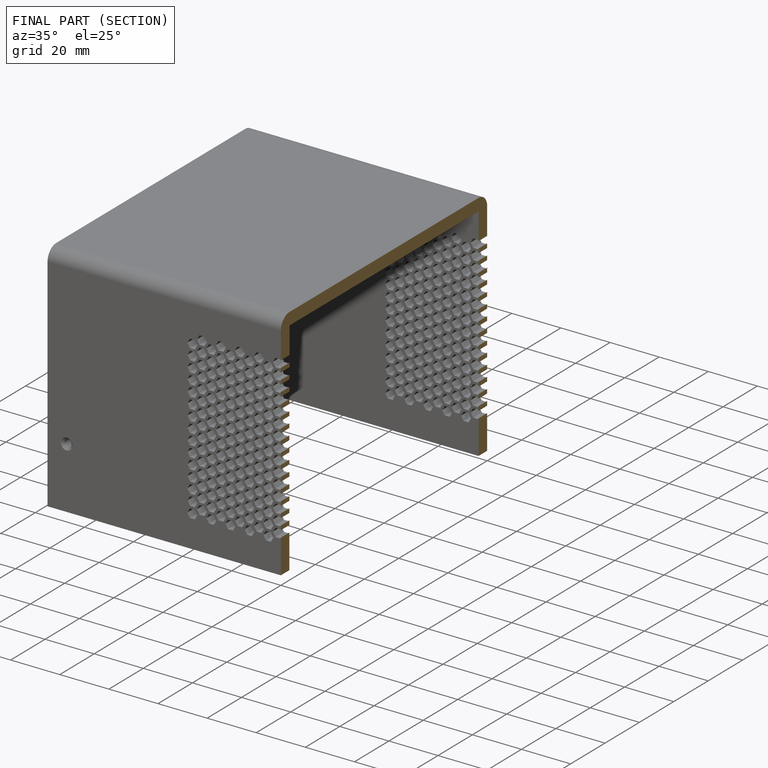
[diagram: finished part — half-section view (interior)]
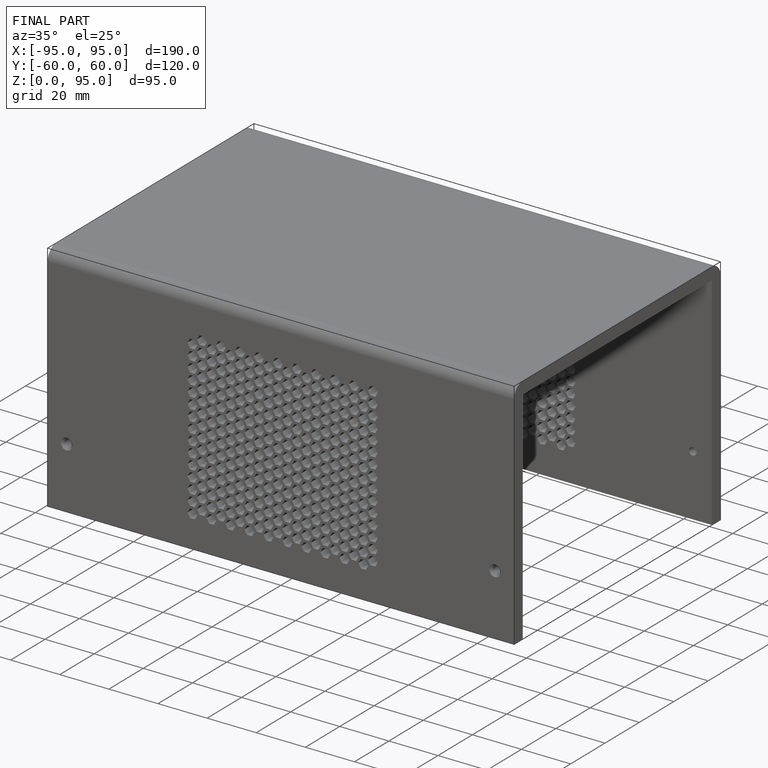
[diagram: finished part — iso view with bounding-box wireframe]
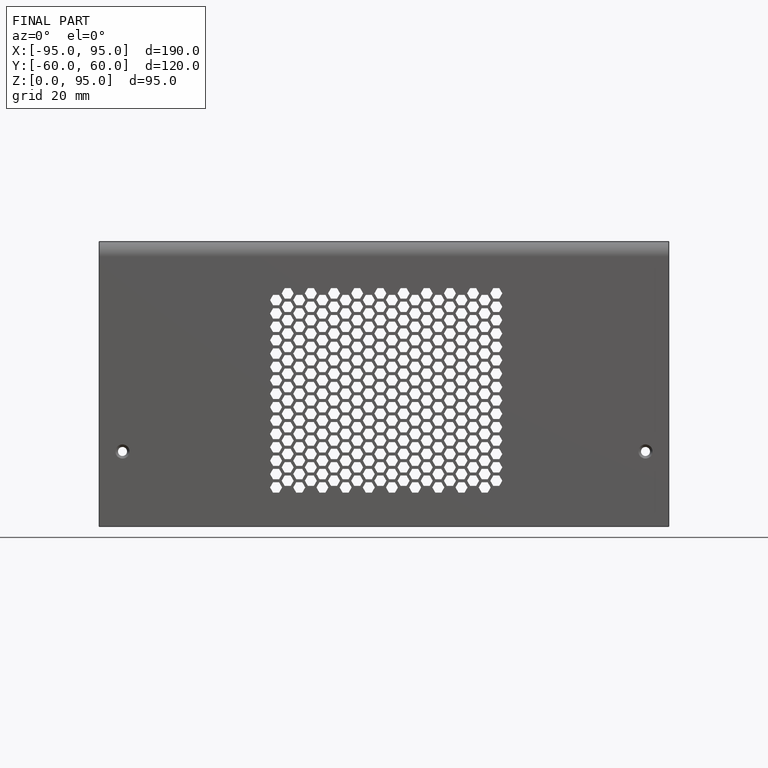
[diagram: finished part — front view with bounding-box wireframe]
